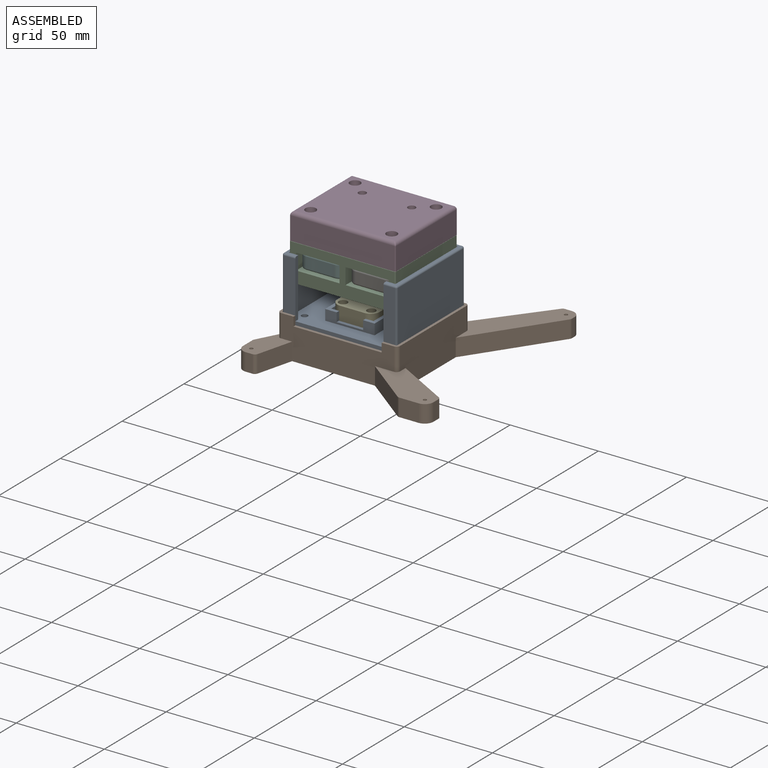
[diagram: assembled view]
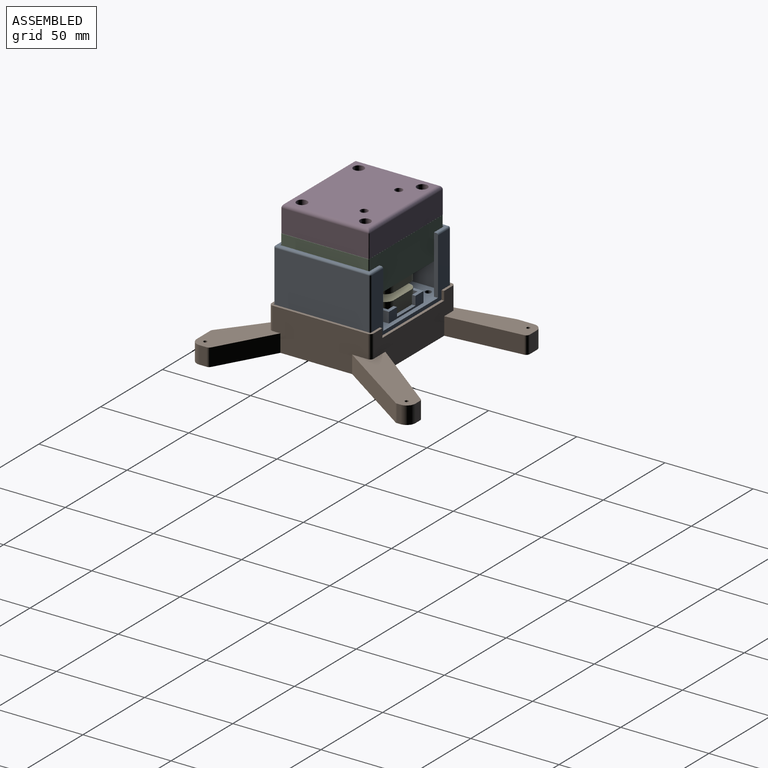
[diagram: assembled view, second angle]
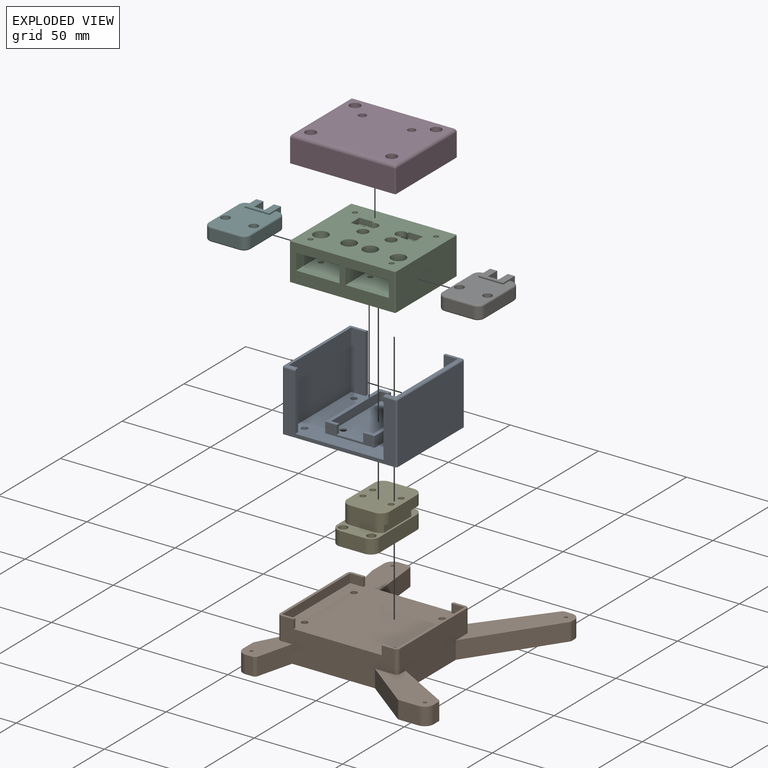
[diagram: exploded view]
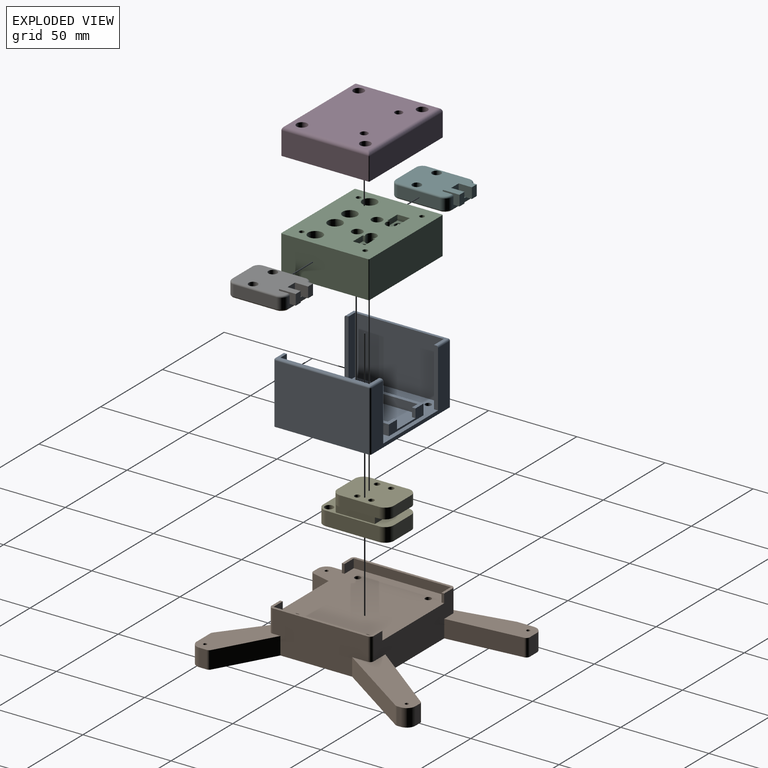
[diagram: exploded view, second angle]
FCSTD DOCUMENT  (FreeCAD 1.0R39319 (Git))
Label: BoltTaskAssembly_TypeA_V1
License: All rights reserved
LicenseURL: https://en.wikipedia.org/wiki/All_rights_reserved
objects: Sketcher::SketchObject×39, Part::FeaturePython×36, PartDesign::Mirrored×18, PartDesign::Hole×17, PartDesign::Fillet×13, PartDesign::Pad×11, PartDesign::Pocket×11, App::Link×7, PartDesign::Body×6, Assembly::JointGroup×1, Assembly::AssemblyObject×1
note: 312 computed .brp shape members not serialized (recipe doc carries the construction recipe); baked Part::Feature solids carry a one-line shape summary decoded from their .brp

FEATURE [Sketcher::SketchObject] Sketch
  ArcFitTolerance = 1e-06
  AttachmentSupport = -> [XY_Plane]
  FullyConstrained = true
  MakeInternals = false
  MapMode = 5
  sketch-geometry (4):
    g0: LineSegment StartX=-12 StartY=16 StartZ=0 EndX=-12 EndY=-16 EndZ=0
    g1: LineSegment StartX=-12 StartY=-16 StartZ=0 EndX=12 EndY=-16 EndZ=0
    g2: LineSegment StartX=12 StartY=-16 StartZ=0 EndX=12 EndY=16 EndZ=0
    g3: LineSegment StartX=12 StartY=16 StartZ=0 EndX=-12 EndY=16 EndZ=0
  constraints (12):
    c: Coincident(g0,g1)
    c: Coincident(g1,g2)
    c: Coincident(g2,g3)
    c: Coincident(g3,g0)
    c: Vertical(g0)
    c: Vertical(g2)
    c: Horizontal(g1)
    c: Horizontal(g3)
    c: Distance(g0,g2) = 24
    c: Distance(g1,g3) = 32
    c: Distance(g-1,g3) = 16
    c: Distance(g-1,g0) = 12
FEATURE [PartDesign::Pad] Pad
  Direction = (0,0,1)
  Length = 8
  Length2 = 10
  Midplane = true
  Profile = -> Sketch
  ReferenceAxis = -> Sketch [N_Axis]
  Refine = true
  Suppressed = false
  Type = 0
FEATURE [PartDesign::Fillet] Fillet
  Base = -> Pad [Edge2,Edge5,Edge8,Edge1]
  BaseFeature = -> Pad
  Radius = 4
  Refine = true
  SupportTransform = false
  Suppressed = false
  UseAllEdges = false
FEATURE [Sketcher::SketchObject] Sketch001
  ArcFitTolerance = 1e-06
  AttachmentSupport = -> [Fillet]
  FullyConstrained = true
  MakeInternals = false
  MapMode = 5
  Placement = pos=(0,0,4) rot=(0,0,1;0rad)
  sketch-geometry (1):
    g0: Circle CenterX=-8 CenterY=-4 CenterZ=0 NormalX=0 NormalY=0 NormalZ=1 AngleXU=0 Radius=2.5
  constraints (3):
    c: Diameter(g0) = 5
    c: DistanceY(g0,g-1) = 4
    c: DistanceX(g0,g-1) = 8
FEATURE [PartDesign::Hole] Hole
  BaseFeature = -> Fillet
  CustomThreadClearance = 0
  Depth = 25
  DepthType = 0
  Diameter = 5
  DrillForDepth = false
  DrillPoint = 1
  DrillPointAngle = 118
  HoleCutCountersinkAngle = 90
  HoleCutCustomValues = false
  HoleCutDepth = 0
  HoleCutDiameter = 6.1
  HoleCutType = 0
  ModelThread = false
  Profile = -> Sketch001
  Refine = true
  Suppressed = false
  Tapered = false
  TaperedAngle = 90
  ThreadClass = 0
  ThreadDepth = 25
  ThreadDepthType = 0
  ThreadDirection = 0
  ThreadFit = 0
  ThreadSize = 0
  ThreadType = 0
  Threaded = false
  UseCustomThreadClearance = false
FEATURE [PartDesign::Mirrored] Mirrored
  BaseFeature = -> Hole
  MirrorPlane = -> Sketch001 [V_Axis]
  Originals = -> [Hole]
  Refine = true
  Suppressed = false
  TransformMode = 0
FEATURE [Sketcher::SketchObject] Sketch002
  ArcFitTolerance = 1e-06
  AttachmentSupport = -> [Mirrored]
  FullyConstrained = true
  MakeInternals = false
  MapMode = 5
  Placement = pos=(0,0,4) rot=(0,0,1;0rad)
  sketch-geometry (4):
    g0: LineSegment StartX=-7 StartY=10 StartZ=0 EndX=7 EndY=10 EndZ=0
    g1: LineSegment StartX=7 StartY=10 StartZ=0 EndX=7 EndY=16 EndZ=0
    g2: LineSegment StartX=7 StartY=16 StartZ=0 EndX=-7 EndY=16 EndZ=0
    g3: LineSegment StartX=-7 StartY=16 StartZ=0 EndX=-7 EndY=10 EndZ=0
  constraints (12):
    c: Coincident(g0,g1)
    c: Coincident(g1,g2)
    c: Coincident(g2,g3)
    c: Coincident(g3,g0)
    c: Horizontal(g0)
    c: Horizontal(g2)
    c: Vertical(g1)
    c: Vertical(g3)
    c: Distance(g1,g3) = 14
    c: Distance(g0,g2) = 6
    c: Distance(g-2,g3) = 7
    c: Distance(g-1,g2) = 16
FEATURE [PartDesign::Pocket] Pocket
  BaseFeature = -> Mirrored
  Direction = (0,0,-1)
  Length = 5.2
  Length2 = 5
  Profile = -> Sketch002
  ReferenceAxis = -> Sketch002 [N_Axis]
  Refine = true
  Suppressed = false
  Type = 0
FEATURE [Sketcher::SketchObject] Sketch003
  ArcFitTolerance = 1e-06
  AttachmentSupport = -> [Pocket]
  FullyConstrained = true
  MakeInternals = false
  MapMode = 5
  Placement = pos=(0,0,-1.2) rot=(0,0,1;0rad)
  sketch-geometry (8):
    g0: LineSegment StartX=7 StartY=10 StartZ=0 EndX=-7 EndY=10 EndZ=0
    g1: LineSegment StartX=-7 StartY=10 StartZ=0 EndX=-7 EndY=19.5 EndZ=0
    g2: LineSegment StartX=-7 StartY=19.5 StartZ=0 EndX=-3 EndY=19.5 EndZ=0
    g3: LineSegment StartX=-3 StartY=19.5 StartZ=0 EndX=-3 EndY=12 EndZ=0
    g4: LineSegment StartX=-3 StartY=12 StartZ=0 EndX=3 EndY=12 EndZ=0
    g5: LineSegment StartX=3 StartY=12 StartZ=0 EndX=3 EndY=19.5 EndZ=0
    g6: LineSegment StartX=3 StartY=19.5 StartZ=0 EndX=7 EndY=19.5 EndZ=0
    g7: LineSegment StartX=7 StartY=19.5 StartZ=0 EndX=7 EndY=10 EndZ=0
  constraints (24):
    c: Horizontal(g0)
    c: Coincident(g0,g1)
    c: Vertical(g1)
    c: Coincident(g1,g2)
    c: Horizontal(g2)
    c: Coincident(g2,g3)
    c: Vertical(g3)
    c: Coincident(g3,g4)
    c: Horizontal(g4)
    c: Coincident(g4,g5)
    c: Vertical(g5)
    c: Coincident(g5,g6)
    c: Horizontal(g6)
    c: Coincident(g6,g7)
    c: Coincident(g7,g0)
    c: Vertical(g7)
    c: Distance(g3,g1) = 4
    c: Distance(g7,g5) = 4
    c: Distance(g7,g1) = 14
    c: Distance(g-2,g1) = 7
    c: Distance(g0,g4) = 2
    c: Distance(g0,g6) = 9.5
    c: Distance(g-1,g0) = 10
    c: Distance(g0,g2) = 9.5
FEATURE [PartDesign::Pad] Pad001
  BaseFeature = -> Pocket
  Direction = (0,0,1)
  Length = 6
  Length2 = 10
  Profile = -> Sketch003
  ReferenceAxis = -> Sketch003 [N_Axis]
  Refine = true
  Suppressed = false
  Type = 0
FEATURE [Assembly::JointGroup] Joints
FEATURE [PartDesign::Fillet] Fillet001
  Base = -> Pad001 [Edge8,Edge10,Edge11,Edge9,Edge6,Edge1,Edge5,Edge7]
  BaseFeature = -> Pad001
  Radius = 1
  Refine = true
  SupportTransform = false
  Suppressed = false
  UseAllEdges = false
FEATURE [PartDesign::Fillet] Fillet002
  Base = -> Fillet001 [Edge20,Edge3,Edge6,Edge16,Edge17,Edge18,Edge19,Edge11,Edge15]
  BaseFeature = -> Fillet001
  Radius = 1
  Refine = true
  SupportTransform = false
  Suppressed = false
  UseAllEdges = false
FEATURE [PartDesign::Body] Body  label="UnitOP180"
  AllowCompound = false
  Group = -> [Sketch,Pad,Fillet,Sketch001,Hole,Mirrored,Sketch002,Pocket,Sketch003,Pad001,Fillet001,Fillet002]
  Origin = -> Origin
  Tip = -> Fillet002
FEATURE [Sketcher::SketchObject] Sketch004
  ArcFitTolerance = 1e-06
  AttachmentSupport = -> [XY_Plane002]
  FullyConstrained = true
  MakeInternals = false
  MapMode = 5
  sketch-geometry (4):
    g0: LineSegment StartX=-30 StartY=-25 StartZ=0 EndX=30 EndY=-25 EndZ=0
    g1: LineSegment StartX=30 StartY=-25 StartZ=0 EndX=30 EndY=25 EndZ=0
    g2: LineSegment StartX=30 StartY=25 StartZ=0 EndX=-30 EndY=25 EndZ=0
    g3: LineSegment StartX=-30 StartY=25 StartZ=0 EndX=-30 EndY=-25 EndZ=0
  constraints (12):
    c: Coincident(g0,g1)
    c: Coincident(g1,g2)
    c: Coincident(g2,g3)
    c: Coincident(g3,g0)
    c: Horizontal(g0)
    c: Horizontal(g2)
    c: Vertical(g1)
    c: Vertical(g3)
    c: Distance(g1,g3) = 60
    c: Distance(g0,g2) = 50
    c: Distance(g3,g-2) = 30
    c: Distance(g2,g-1) = 25
FEATURE [Sketcher::SketchObject] Sketch005
  ArcFitTolerance = 1e-06
  AttachmentSupport = -> [XY_Plane003]
  FullyConstrained = true
  MakeInternals = false
  MapMode = 5
  sketch-geometry (4):
    g0: LineSegment StartX=-12 StartY=20 StartZ=0 EndX=-12 EndY=-20 EndZ=0
    g1: LineSegment StartX=-12 StartY=-20 StartZ=0 EndX=12 EndY=-20 EndZ=0
    g2: LineSegment StartX=12 StartY=-20 StartZ=0 EndX=12 EndY=20 EndZ=0
    g3: LineSegment StartX=12 StartY=20 StartZ=0 EndX=-12 EndY=20 EndZ=0
  constraints (12):
    c: Coincident(g0,g1)
    c: Coincident(g1,g2)
    c: Coincident(g2,g3)
    c: Coincident(g3,g0)
    c: Vertical(g0)
    c: Vertical(g2)
    c: Horizontal(g1)
    c: Horizontal(g3)
    c: Distance(g0,g2) = 24
    c: Distance(g1,g3) = 40
    c: Distance(g0,g-2) = 12
    c: Distance(g1,g-1) = 20
FEATURE [PartDesign::Pad] Pad002
  Direction = (0,0,1)
  Length = 8
  Length2 = 10
  Profile = -> Sketch005
  ReferenceAxis = -> Sketch005 [N_Axis]
  Refine = true
  Suppressed = false
  Type = 0
FEATURE [PartDesign::Pad] Pad004
  Direction = (0,0,1)
  Length = 21
  Length2 = 10
  Profile = -> Sketch004
  ReferenceAxis = -> Sketch004 [N_Axis]
  Refine = true
  Suppressed = false
  Type = 0
FEATURE [Sketcher::SketchObject] Sketch007
  ArcFitTolerance = 1e-06
  AttachmentSupport = -> [Pad004]
  FullyConstrained = true
  MakeInternals = false
  MapMode = 5
  Placement = pos=(0,-25,0) rot=(1,0,0;1.5708rad)
  sketch-geometry (4):
    g0: LineSegment StartX=1.7 StartY=16 StartZ=0 EndX=1.7 EndY=6.8 EndZ=0
    g1: LineSegment StartX=1.7 StartY=6.8 StartZ=0 EndX=26.3 EndY=6.8 EndZ=0
    g2: LineSegment StartX=26.3 StartY=6.8 StartZ=0 EndX=26.3 EndY=16 EndZ=0
    g3: LineSegment StartX=26.3 StartY=16 StartZ=0 EndX=1.7 EndY=16 EndZ=0
  constraints (12):
    c: Coincident(g0,g1)
    c: Coincident(g1,g2)
    c: Coincident(g2,g3)
    c: Coincident(g3,g0)
    c: Vertical(g0)
    c: Vertical(g2)
    c: Horizontal(g1)
    c: Horizontal(g3)
    c: Distance(g0,g2) = 24.6
    c: Distance(g1,g3) = 9.2
    c: Distance(g-2,g0) = 1.7
    c: Distance(g-1,g1) = 6.8
FEATURE [PartDesign::Pocket] Pocket001
  BaseFeature = -> Pad004
  Direction = (0,1,-2e-16)
  Length = 40
  Length2 = 5
  Profile = -> Sketch007
  ReferenceAxis = -> Sketch007 [N_Axis]
  Refine = true
  Suppressed = false
  Type = 0
FEATURE [PartDesign::Mirrored] Mirrored001
  BaseFeature = -> Pocket001
  MirrorPlane = -> Sketch007 [V_Axis]
  Originals = -> [Pocket001]
  Refine = true
  Suppressed = false
  TransformMode = 0
FEATURE [Sketcher::SketchObject] Sketch008
  ArcFitTolerance = 1e-06
  AttachmentSupport = -> [Mirrored001]
  FullyConstrained = true
  MakeInternals = false
  MapMode = 5
  Placement = pos=(0,0,21) rot=(0,0,1;0rad)
  sketch-geometry (1):
    g0: Circle CenterX=14 CenterY=11 CenterZ=0 NormalX=0 NormalY=0 NormalZ=1 AngleXU=0 Radius=2.25
  constraints (3):
    c: Diameter(g0) = 4.5
    c: DistanceX(g-1,g0) = 14
    c: Distance(g0,g-1) = 11
FEATURE [PartDesign::Hole] Hole001
  BaseFeature = -> Mirrored001
  CustomThreadClearance = 0
  Depth = 162.858
  DepthType = 1
  Diameter = 4.5
  DrillForDepth = false
  DrillPoint = 1
  DrillPointAngle = 118
  HoleCutCountersinkAngle = 90
  HoleCutCustomValues = false
  HoleCutDepth = 0
  HoleCutDiameter = 6.1
  HoleCutType = 0
  ModelThread = false
  Profile = -> Sketch008
  Refine = true
  Suppressed = false
  Tapered = false
  TaperedAngle = 90
  ThreadClass = 0
  ThreadDepth = 162.858
  ThreadDepthType = 0
  ThreadDirection = 0
  ThreadFit = 0
  ThreadSize = 0
  ThreadType = 0
  Threaded = false
  UseCustomThreadClearance = false
FEATURE [PartDesign::Mirrored] Mirrored002
  BaseFeature = -> Hole001
  MirrorPlane = -> Sketch008 [V_Axis]
  Originals = -> [Hole001]
  Refine = true
  Suppressed = false
  TransformMode = 0
FEATURE [Sketcher::SketchObject] Sketch009
  ArcFitTolerance = 1e-06
  AttachmentSupport = -> [Mirrored002]
  ExternalGeometry = -> [Mirrored002]
  FullyConstrained = true
  MakeInternals = false
  MapMode = 5
  Placement = pos=(0,0,0) rot=(1,0,0;3.14159rad)
  sketch-geometry (4):
    g0: LineSegment StartX=-12 StartY=-23 StartZ=0 EndX=12 EndY=-23 EndZ=0
    g1: LineSegment StartX=12 StartY=-23 StartZ=0 EndX=12 EndY=9 EndZ=0
    g2: LineSegment StartX=12 StartY=9 StartZ=0 EndX=-12 EndY=9 EndZ=0
    g3: LineSegment StartX=-12 StartY=9 StartZ=0 EndX=-12 EndY=-23 EndZ=0
  constraints (12):
    c: Coincident(g0,g1)
    c: Coincident(g1,g2)
    c: Coincident(g2,g3)
    c: Coincident(g3,g0)
    c: Horizontal(g0)
    c: Horizontal(g2)
    c: Vertical(g1)
    c: Vertical(g3)
    c: Distance(g1,g3) = 24
    c: Distance(g0,g2) = 32
    c: Distance(g3,g-2) = 12
    c: Distance(g2,g-3) = 34
FEATURE [PartDesign::Pocket] Pocket002
  BaseFeature = -> Mirrored002
  Direction = (0,0,1)
  Length = 2
  Length2 = 5
  Profile = -> Sketch009
  ReferenceAxis = -> Sketch009 [N_Axis]
  Refine = true
  Suppressed = false
  Type = 0
FEATURE [Sketcher::SketchObject] Sketch010
  ArcFitTolerance = 1e-06
  AttachmentSupport = -> [Pocket002]
  ExternalGeometry = -> [Pocket002]
  FullyConstrained = true
  MakeInternals = false
  MapMode = 5
  Placement = pos=(0,0,21) rot=(0,0,1;0rad)
  sketch-geometry (4):
    g0: LineSegment StartX=9.95 StartY=14.5 StartZ=0 EndX=9.95 EndY=7.5 EndZ=0
    g1: LineSegment StartX=9.95 StartY=7.5 StartZ=0 EndX=18.05 EndY=7.5 EndZ=0
    g2: LineSegment StartX=18.05 StartY=7.5 StartZ=0 EndX=18.05 EndY=14.5 EndZ=0
    g3: LineSegment StartX=18.05 StartY=14.5 StartZ=0 EndX=9.95 EndY=14.5 EndZ=0
  constraints (12):
    c: Coincident(g0,g1)
    c: Coincident(g1,g2)
    c: Coincident(g2,g3)
    c: Coincident(g3,g0)
    c: Vertical(g0)
    c: Vertical(g2)
    c: Horizontal(g1)
    c: Horizontal(g3)
    c: Distance(g0,g2) = 8.1
    c: Distance(g1,g3) = 7
    c: Distance(g-3,g3) = 3.5
    c: Distance(g-3,g2) = 4.05
FEATURE [PartDesign::Pocket] Pocket003
  BaseFeature = -> Pocket002
  Direction = (0,0,-1)
  Length = 3.05
  Length2 = 5
  Profile = -> Sketch010
  ReferenceAxis = -> Sketch010 [N_Axis]
  Refine = true
  Suppressed = false
  Type = 0
FEATURE [PartDesign::Mirrored] Mirrored003
  BaseFeature = -> Pocket003
  MirrorPlane = -> Sketch010 [V_Axis]
  Originals = -> [Pocket003]
  Refine = true
  Suppressed = false
  TransformMode = 0
FEATURE [Sketcher::SketchObject] Sketch011
  ArcFitTolerance = 1e-06
  AttachmentSupport = -> [Mirrored003]
  FullyConstrained = true
  MakeInternals = false
  MapMode = 5
  Placement = pos=(0,0,21) rot=(0,0,1;0rad)
  sketch-geometry (2):
    g0: Circle CenterX=6 CenterY=-11 CenterZ=0 NormalX=0 NormalY=0 NormalZ=1 AngleXU=0 Radius=4
    g1: Circle CenterX=22 CenterY=-11 CenterZ=0 NormalX=0 NormalY=0 NormalZ=1 AngleXU=0 Radius=4
  constraints (6):
    c: Diameter(g0) = 8
    c: Distance(g0,g-1) = 11
    c: Distance(g0,g-2) = 6
    c: Diameter(g1) = 8
    c: Distance(g1,g-1) = 11
    c: DistanceX(g0,g1) = 16
FEATURE [PartDesign::Hole] Hole002
  BaseFeature = -> Mirrored003
  CustomThreadClearance = 0
  Depth = 25
  DepthType = 0
  Diameter = 2.8
  DrillForDepth = false
  DrillPoint = 1
  DrillPointAngle = 118
  HoleCutCountersinkAngle = 90
  HoleCutCustomValues = false
  HoleCutDepth = 5.42
  HoleCutDiameter = 8.2
  HoleCutType = 1
  ModelThread = false
  Profile = -> Sketch011
  Refine = true
  Suppressed = false
  Tapered = false
  TaperedAngle = 90
  ThreadClass = 0
  ThreadDepth = 25
  ThreadDepthType = 0
  ThreadDirection = 0
  ThreadFit = 0
  ThreadSize = 0
  ThreadType = 0
  Threaded = false
  UseCustomThreadClearance = false
FEATURE [PartDesign::Mirrored] Mirrored004
  BaseFeature = -> Hole002
  MirrorPlane = -> Sketch011 [V_Axis]
  Originals = -> [Hole002]
  Refine = true
  Suppressed = false
  TransformMode = 0
FEATURE [Sketcher::SketchObject] Sketch012
  ArcFitTolerance = 1e-06
  AttachmentSupport = -> [Mirrored004]
  ExternalGeometry = -> [Mirrored004]
  FullyConstrained = true
  MakeInternals = false
  MapMode = 5
  Placement = pos=(0,0,2) rot=(1,0,0;3.14159rad)
  sketch-geometry (2):
    g0: Circle CenterX=8 CenterY=-11 CenterZ=0 NormalX=0 NormalY=0 NormalZ=1 AngleXU=0 Radius=1.6
    g1: Circle CenterX=8 CenterY=-3 CenterZ=0 NormalX=0 NormalY=0 NormalZ=1 AngleXU=0 Radius=1.6
  constraints (7):
    c: Diameter(g0) = 3.2
    c: Diameter(g1) = 3.2
    c: Distance(g1,g-2) = 8
    c: Distance(g0,g-2) = 8
    c: Distance(g0,g-3) = 12
    c: DistanceX(g-3,g-3) = 24
    c: Distance(g1,g-3) = 20
FEATURE [PartDesign::Hole] Hole003
  BaseFeature = -> Mirrored004
  CustomThreadClearance = 0
  Depth = 25
  DepthType = 0
  Diameter = 3.2
  DrillForDepth = false
  DrillPoint = 1
  DrillPointAngle = 118
  HoleCutCountersinkAngle = 90
  HoleCutCustomValues = false
  HoleCutDepth = 0
  HoleCutDiameter = 6.1
  HoleCutType = 0
  ModelThread = false
  Profile = -> Sketch012
  Refine = true
  Suppressed = false
  Tapered = false
  TaperedAngle = 90
  ThreadClass = 0
  ThreadDepth = 25
  ThreadDepthType = 0
  ThreadDirection = 0
  ThreadFit = 0
  ThreadSize = 0
  ThreadType = 0
  Threaded = false
  UseCustomThreadClearance = false
FEATURE [Sketcher::SketchObject] Sketch013
  ArcFitTolerance = 1e-06
  AttachmentSupport = -> [Hole003]
  ExternalGeometry = -> [Hole003]
  FullyConstrained = true
  MakeInternals = false
  MapMode = 5
  Placement = pos=(0,0,21) rot=(0,0,1;0rad)
  sketch-geometry (2):
    g0: Circle CenterX=8 CenterY=11 CenterZ=0 NormalX=0 NormalY=0 NormalZ=1 AngleXU=0 Radius=3
    g1: Circle CenterX=8 CenterY=3 CenterZ=0 NormalX=0 NormalY=0 NormalZ=1 AngleXU=0 Radius=3
  constraints (4):
    c: Diameter(g0) = 6
    c: Coincident(g0,g-3)
    c: Diameter(g1) = 6
    c: Coincident(g1,g-4)
FEATURE [PartDesign::Hole] Hole004
  BaseFeature = -> Hole003
  CustomThreadClearance = 0
  Depth = 17
  DepthType = 0
  Diameter = 6
  DrillForDepth = false
  DrillPoint = 1
  DrillPointAngle = 118
  HoleCutCountersinkAngle = 90
  HoleCutCustomValues = false
  HoleCutDepth = 0
  HoleCutDiameter = 6.1
  HoleCutType = 0
  ModelThread = false
  Profile = -> Sketch013
  Refine = true
  Suppressed = false
  Tapered = false
  TaperedAngle = 90
  ThreadClass = 0
  ThreadDepth = 17
  ThreadDepthType = 0
  ThreadDirection = 0
  ThreadFit = 0
  ThreadSize = 0
  ThreadType = 0
  Threaded = false
  UseCustomThreadClearance = false
FEATURE [PartDesign::Mirrored] Mirrored005
  BaseFeature = -> Hole004
  MirrorPlane = -> Sketch013 [V_Axis]
  Originals = -> [Hole004]
  Refine = true
  Suppressed = false
  TransformMode = 0
FEATURE [PartDesign::Mirrored] Mirrored006
  BaseFeature = -> Mirrored005
  MirrorPlane = -> Sketch012 [V_Axis]
  Originals = -> [Hole003]
  Refine = true
  Suppressed = false
  TransformMode = 0
FEATURE [Sketcher::SketchObject] Sketch014
  ArcFitTolerance = 1e-06
  AttachmentSupport = -> [Mirrored006]
  ExternalGeometry = -> [Mirrored006]
  FullyConstrained = true
  MakeInternals = false
  MapMode = 5
  Placement = pos=(0,0,21) rot=(0,0,1;0rad)
  sketch-geometry (2):
    g0: Circle CenterX=23 CenterY=18 CenterZ=0 NormalX=0 NormalY=0 NormalZ=1 AngleXU=0 Radius=1.6
    g1: Circle CenterX=23 CenterY=-18 CenterZ=0 NormalX=0 NormalY=0 NormalZ=1 AngleXU=0 Radius=1.6
  constraints (6):
    c: Diameter(g0) = 3.2
    c: Distance(g0,g-3) = 7
    c: Distance(g0,g-4) = 7
    c: Diameter(g1) = 3.2
    c: Distance(g1,g-5) = 7
    c: Distance(g1,g-4) = 7
FEATURE [PartDesign::Hole] Hole005
  BaseFeature = -> Mirrored006
  CustomThreadClearance = 0
  Depth = 7
  DepthType = 0
  Diameter = 2.8
  DrillForDepth = false
  DrillPoint = 1
  DrillPointAngle = 118
  HoleCutCountersinkAngle = 90
  HoleCutCustomValues = false
  HoleCutDepth = 0
  HoleCutDiameter = 6.1
  HoleCutType = 0
  ModelThread = false
  Profile = -> Sketch014
  Refine = true
  Suppressed = false
  Tapered = false
  TaperedAngle = 90
  ThreadClass = 0
  ThreadDepth = 7
  ThreadDepthType = 0
  ThreadDirection = 0
  ThreadFit = 0
  ThreadSize = 0
  ThreadType = 0
  Threaded = false
  UseCustomThreadClearance = false
FEATURE [PartDesign::Mirrored] Mirrored007
  BaseFeature = -> Hole005
  MirrorPlane = -> Sketch014 [V_Axis]
  Originals = -> [Hole005]
  Refine = true
  Suppressed = false
  TransformMode = 0
FEATURE [PartDesign::Mirrored] Mirrored008
  BaseFeature = -> Mirrored007
  MirrorPlane = -> Sketch014 [V_Axis]
  Originals = -> [Hole005]
  Refine = true
  Suppressed = false
  TransformMode = 0
FEATURE [PartDesign::Fillet] Fillet007
  Base = -> Mirrored008 [Edge1,Edge4,Edge56,Edge13]
  BaseFeature = -> Mirrored008
  Radius = 0.5
  Refine = true
  SupportTransform = false
  Suppressed = false
  UseAllEdges = false
FEATURE [PartDesign::Body] Body001  label="Main"
  AllowCompound = false
  Group = -> [Sketch004,Pad004,Sketch007,Pocket001,Mirrored001,Sketch008,Hole001,Mirrored002,Sketch009,Pocket002,Sketch010,Pocket003,Mirrored003,Sketch011,Hole002,Mirrored004,Sketch012,Hole003,Sketch013,Hole004,Mirrored005,Mirrored006,Sketch014,Hole005,Mirrored007,Mirrored008,Fillet007]
  Origin = -> Origin002
  Tip = -> Fillet007
FEATURE [Sketcher::SketchObject] Sketch015
  ArcFitTolerance = 1e-06
  AttachmentSupport = -> [XY_Plane004]
  FullyConstrained = true
  MakeInternals = false
  MapMode = 5
  sketch-geometry (4):
    g0: LineSegment StartX=-30 StartY=25 StartZ=0 EndX=-30 EndY=-25 EndZ=0
    g1: LineSegment StartX=-30 StartY=-25 StartZ=0 EndX=30 EndY=-25 EndZ=0
    g2: LineSegment StartX=30 StartY=-25 StartZ=0 EndX=30 EndY=25 EndZ=0
    g3: LineSegment StartX=30 StartY=25 StartZ=0 EndX=-30 EndY=25 EndZ=0
  constraints (12):
    c: Coincident(g0,g1)
    c: Coincident(g1,g2)
    c: Coincident(g2,g3)
    c: Coincident(g3,g0)
    c: Vertical(g0)
    c: Vertical(g2)
    c: Horizontal(g1)
    c: Horizontal(g3)
    c: Distance(g0,g2) = 60
    c: Distance(g1,g3) = 50
    c: Distance(g-2,g0) = 30
    c: Distance(g3,g-1) = 25
FEATURE [PartDesign::Pad] Pad005
  Direction = (0,0,1)
  Length = 15
  Length2 = 10
  Profile = -> Sketch015
  ReferenceAxis = -> Sketch015 [N_Axis]
  Refine = true
  Suppressed = false
  Type = 0
FEATURE [Sketcher::SketchObject] Sketch016
  ArcFitTolerance = 1e-06
  AttachmentSupport = -> [Pad005]
  ExternalGeometry = -> [Pad005]
  FullyConstrained = true
  MakeInternals = false
  MapMode = 5
  Placement = pos=(0,0,15) rot=(0,0,1;0rad)
  sketch-geometry (2):
    g0: Circle CenterX=23 CenterY=18 CenterZ=0 NormalX=0 NormalY=0 NormalZ=1 AngleXU=0 Radius=4
    g1: Circle CenterX=23 CenterY=-18 CenterZ=0 NormalX=0 NormalY=0 NormalZ=1 AngleXU=0 Radius=4
  constraints (6):
    c: Diameter(g0) = 8
    c: Distance(g0,g-4) = 7
    c: Distance(g0,g-3) = 7
    c: Diameter(g1) = 8
    c: Distance(g1,g-4) = 7
    c: Distance(g1,g-5) = 7
FEATURE [PartDesign::Hole] Hole006
  BaseFeature = -> Pad005
  CustomThreadClearance = 0
  Depth = 25
  DepthType = 0
  Diameter = 2.8
  DrillForDepth = false
  DrillPoint = 1
  DrillPointAngle = 118
  HoleCutCountersinkAngle = 90
  HoleCutCustomValues = false
  HoleCutDepth = 10
  HoleCutDiameter = 6
  HoleCutType = 1
  ModelThread = false
  Profile = -> Sketch016
  Refine = true
  Suppressed = false
  Tapered = false
  TaperedAngle = 90
  ThreadClass = 0
  ThreadDepth = 25
  ThreadDepthType = 0
  ThreadDirection = 0
  ThreadFit = 0
  ThreadSize = 0
  ThreadType = 0
  Threaded = false
  UseCustomThreadClearance = false
FEATURE [PartDesign::Mirrored] Mirrored009
  BaseFeature = -> Hole006
  MirrorPlane = -> Sketch016 [V_Axis]
  Originals = -> [Hole006]
  Refine = true
  Suppressed = false
  TransformMode = 0
FEATURE [Sketcher::SketchObject] Sketch018
  ArcFitTolerance = 1e-06
  FullyConstrained = true
  MakeInternals = false
  MapMode = 5
  Placement = pos=(0,0,15) rot=(0,0,1;0rad)
  sketch-geometry (1):
    g0: Circle CenterX=14 CenterY=11 CenterZ=0 NormalX=0 NormalY=0 NormalZ=1 AngleXU=0 Radius=2.15
  constraints (3):
    c: Diameter(g0) = 4.3
    c: Distance(g0,g-2) = 14
    c: Distance(g0,g-1) = 11
FEATURE [PartDesign::Hole] Hole007
  BaseFeature = -> Mirrored009
  CustomThreadClearance = 0
  Depth = 25
  DepthType = 0
  Diameter = 4.3
  DrillForDepth = false
  DrillPoint = 1
  DrillPointAngle = 118
  HoleCutCountersinkAngle = 90
  HoleCutCustomValues = false
  HoleCutDepth = 0
  HoleCutDiameter = 6.1
  HoleCutType = 0
  ModelThread = false
  Profile = -> Sketch018
  Refine = true
  Suppressed = false
  Tapered = false
  TaperedAngle = 90
  ThreadClass = 0
  ThreadDepth = 25
  ThreadDepthType = 0
  ThreadDirection = 0
  ThreadFit = 0
  ThreadSize = 0
  ThreadType = 0
  Threaded = false
  UseCustomThreadClearance = false
FEATURE [PartDesign::Mirrored] Mirrored011
  BaseFeature = -> Hole007
  MirrorPlane = -> Sketch018 [V_Axis]
  Originals = -> [Hole007]
  Refine = true
  Suppressed = false
  TransformMode = 0
FEATURE [PartDesign::Fillet] Fillet008
  Base = -> Mirrored011 [Edge2,Edge8,Edge5,Edge1]
  BaseFeature = -> Mirrored011
  Radius = 0.5
  Refine = true
  SupportTransform = false
  Suppressed = false
  UseAllEdges = false
FEATURE [PartDesign::Fillet] Fillet009
  Base = -> Fillet008 [Edge22,Edge4,Edge26,Edge23]
  BaseFeature = -> Fillet008
  Radius = 2
  Refine = true
  SupportTransform = false
  Suppressed = false
  UseAllEdges = false
FEATURE [PartDesign::Body] Body003  label="Top"
  AllowCompound = false
  Group = -> [Sketch015,Pad005,Sketch016,Hole006,Mirrored009,Sketch018,Hole007,Mirrored011,Fillet008,Fillet009]
  Origin = -> Origin004
  Tip = -> Fillet009
FEATURE [App::Link] Main  label="Main001"
  LinkPlacement = pos=(-53.2103,-49.0185,8.18569) rot=(0,0,1;0rad)
  LinkedObject = -> Body001
  Placement = pos=(-53.2103,-49.0185,8.18569) rot=(0,0,1;0rad)
FEATURE [App::Link] Top  label="Top001"
  LinkPlacement = pos=(-53.2165,-48.9245,29.2925) rot=(0,0,1;0rad)
  LinkedObject = -> Body003
  Placement = pos=(-53.2165,-48.9245,29.2925) rot=(0,0,1;0rad)
FEATURE [App::Link] UnitOP180  label="UnitOP181"
  LinkPlacement = pos=(-67.2322,-55.9739,19.3972) rot=(0,0,1;0rad)
  LinkedObject = -> Body
  Placement = pos=(-67.2322,-55.9739,19.3972) rot=(0,0,1;0rad)
FEATURE [App::Link] UnitOP181  label="UnitOP182"
  LinkPlacement = pos=(-39.2448,-55.9824,19.1881) rot=(0,0,1;0rad)
  LinkedObject = -> Body
  Placement = pos=(-39.2448,-55.9824,19.1881) rot=(0,0,1;0rad)
FEATURE [App::Link] UnitMiniScale  label="UnitMiniScale001"
  LinkPlacement = pos=(-53.235,-46.002,-8.96991) rot=(0,0,1;3.14159rad)
  LinkedObject = -> Body002
  Placement = pos=(-53.235,-46.002,-8.96991) rot=(0,0,1;3.14159rad)
FEATURE [Sketcher::SketchObject] Sketch019
  ArcFitTolerance = 1e-06
  AttachmentSupport = -> [XY_Plane005]
  FullyConstrained = true
  MakeInternals = false
  MapMode = 5
  sketch-geometry (4):
    g0: LineSegment StartX=-32.5 StartY=27.5 StartZ=0 EndX=-32.5 EndY=-27.5 EndZ=0
    g1: LineSegment StartX=-32.5 StartY=-27.5 StartZ=0 EndX=32.5 EndY=-27.5 EndZ=0
    g2: LineSegment StartX=32.5 StartY=-27.5 StartZ=0 EndX=32.5 EndY=27.5 EndZ=0
    g3: LineSegment StartX=32.5 StartY=27.5 StartZ=0 EndX=-32.5 EndY=27.5 EndZ=0
  constraints (12):
    c: Coincident(g0,g1)
    c: Coincident(g1,g2)
    c: Coincident(g2,g3)
    c: Coincident(g3,g0)
    c: Vertical(g0)
    c: Vertical(g2)
    c: Horizontal(g1)
    c: Horizontal(g3)
    c: Distance(g0,g2) = 65
    c: Distance(g1,g3) = 55
    c: Distance(g2,g-2) = 32.5
    c: Distance(g3,g-1) = 27.5
FEATURE [PartDesign::Pad] Pad006
  Direction = (0,0,1)
  Length = 35
  Length2 = 10
  Profile = -> Sketch019
  ReferenceAxis = -> Sketch019 [N_Axis]
  Refine = true
  Suppressed = false
  Type = 0
FEATURE [Sketcher::SketchObject] Sketch020
  ArcFitTolerance = 1e-06
  AttachmentSupport = -> [Pad006]
  FullyConstrained = true
  MakeInternals = false
  MapMode = 5
  Placement = pos=(0,0,35) rot=(0,0,1;0rad)
  sketch-geometry (8):
    g0: LineSegment StartX=22.2 StartY=-35.2 StartZ=0 EndX=22.2 EndY=-25.2 EndZ=0
    g1: LineSegment StartX=22.2 StartY=-25.2 StartZ=0 EndX=30.2 EndY=-25.2 EndZ=0
    g2: LineSegment StartX=30.2 StartY=-25.2 StartZ=0 EndX=30.2 EndY=25.2 EndZ=0
    g3: LineSegment StartX=30.2 StartY=25.2 StartZ=0 EndX=-30.2 EndY=25.2 EndZ=0
    g4: LineSegment StartX=-30.2 StartY=25.2 StartZ=0 EndX=-30.2 EndY=-25.2 EndZ=0
    g5: LineSegment StartX=-30.2 StartY=-25.2 StartZ=0 EndX=-22.2 EndY=-25.2 EndZ=0
    g6: LineSegment StartX=-22.2 StartY=-25.2 StartZ=0 EndX=-22.2 EndY=-35.2 EndZ=0
    g7: LineSegment StartX=-22.2 StartY=-35.2 StartZ=0 EndX=22.2 EndY=-35.2 EndZ=0
  constraints (24):
    c: Coincident(g0,g1)
    c: Horizontal(g1)
    c: Coincident(g1,g2)
    c: Vertical(g2)
    c: Coincident(g2,g3)
    c: Horizontal(g3)
    c: Coincident(g3,g4)
    c: Vertical(g4)
    c: Coincident(g4,g5)
    c: Horizontal(g5)
    c: Coincident(g5,g6)
    c: Vertical(g6)
    c: Coincident(g6,g7)
    c: Coincident(g7,g0)
    c: Horizontal(g7)
    c: Distance(g2,g4) = 60.4
    c: Distance(g5,g4) = 8
    c: Distance(g0,g2) = 8
    c: Parallel(g0,g-2)
    c: Distance(g5,g3) = 50.4
    c: Distance(g-2,g4) = 30.2
    c: Distance(g-1,g3) = 25.2
    c: Distance(g1,g3) = 50.4
    c: Distance(g1,g7) = 10
FEATURE [PartDesign::Pocket] Pocket005
  BaseFeature = -> Pad006
  Direction = (0,0,-1)
  Length = 33
  Length2 = 5
  Profile = -> Sketch020
  ReferenceAxis = -> Sketch020 [N_Axis]
  Refine = true
  Suppressed = false
  Type = 0
FEATURE [Sketcher::SketchObject] Sketch021
  ArcFitTolerance = 1e-06
  AttachmentSupport = -> [Pocket005]
  ExternalGeometry = -> [Pocket005]
  FullyConstrained = true
  MakeInternals = false
  MapMode = 5
  Placement = pos=(0,0,2) rot=(0,0,1;0rad)
  sketch-geometry (4):
    g0: LineSegment StartX=-14 StartY=19 StartZ=0 EndX=-14 EndY=-25 EndZ=0
    g1: LineSegment StartX=-14 StartY=-25 StartZ=0 EndX=14 EndY=-25 EndZ=0
    g2: LineSegment StartX=14 StartY=-25 StartZ=0 EndX=14 EndY=19 EndZ=0
    g3: LineSegment StartX=14 StartY=19 StartZ=0 EndX=-14 EndY=19 EndZ=0
  constraints (12):
    c: Coincident(g0,g1)
    c: Coincident(g1,g2)
    c: Coincident(g2,g3)
    c: Coincident(g3,g0)
    c: Vertical(g0)
    c: Vertical(g2)
    c: Horizontal(g1)
    c: Horizontal(g3)
    c: Distance(g0,g2) = 28
    c: Distance(g1,g3) = 44
    c: Distance(g-3,g1) = 0.2
    c: Distance(g-2,g0) = 14
FEATURE [PartDesign::Pad] Pad007
  BaseFeature = -> Pocket005
  Direction = (0,0,1)
  Length = 6
  Length2 = 10
  Profile = -> Sketch021
  ReferenceAxis = -> Sketch021 [N_Axis]
  Refine = true
  Suppressed = false
  Type = 0
FEATURE [Sketcher::SketchObject] Sketch022
  ArcFitTolerance = 1e-06
  AttachmentSupport = -> [Pad007]
  ExternalGeometry = -> [Pad007]
  FullyConstrained = true
  MakeInternals = false
  MapMode = 5
  Placement = pos=(0,0,8) rot=(0,0,1;0rad)
  sketch-geometry (4):
    g0: LineSegment StartX=-12 StartY=17 StartZ=0 EndX=-12 EndY=-23 EndZ=0
    g1: LineSegment StartX=-12 StartY=-23 StartZ=0 EndX=12 EndY=-23 EndZ=0
    g2: LineSegment StartX=12 StartY=-23 StartZ=0 EndX=12 EndY=17 EndZ=0
    g3: LineSegment StartX=12 StartY=17 StartZ=0 EndX=-12 EndY=17 EndZ=0
  constraints (12):
    c: Coincident(g0,g1)
    c: Coincident(g1,g2)
    c: Coincident(g2,g3)
    c: Coincident(g3,g0)
    c: Vertical(g0)
    c: Vertical(g2)
    c: Horizontal(g1)
    c: Horizontal(g3)
    c: Distance(g0,g2) = 24
    c: Distance(g1,g3) = 40
    c: Distance(g-2,g0) = 12
    c: Distance(g3,g-3) = 2
FEATURE [PartDesign::Pocket] Pocket006
  BaseFeature = -> Pad007
  Direction = (0,0,-1)
  Length = 5
  Length2 = 5
  Profile = -> Sketch022
  ReferenceAxis = -> Sketch022 [N_Axis]
  Refine = true
  Suppressed = false
  Type = 0
FEATURE [Sketcher::SketchObject] Sketch023
  ArcFitTolerance = 1e-06
  AttachmentSupport = -> [Pocket006]
  ExternalGeometry = -> [Pocket006]
  FullyConstrained = true
  MakeInternals = false
  MapMode = 5
  Placement = pos=(0,0,3) rot=(0,0,1;0rad)
  sketch-geometry (1):
    g0: Circle CenterX=-8 CenterY=13 CenterZ=0 NormalX=0 NormalY=0 NormalZ=1 AngleXU=0 Radius=2
  constraints (3):
    c: Diameter(g0) = 4
    c: Distance(g0,g-3) = 4
    c: Distance(g0,g-4) = 4
FEATURE [PartDesign::Hole] Hole008
  BaseFeature = -> Pocket006
  CustomThreadClearance = 0
  Depth = 25
  DepthType = 0
  Diameter = 3.5
  DrillForDepth = false
  DrillPoint = 1
  DrillPointAngle = 118
  HoleCutCountersinkAngle = 90
  HoleCutCustomValues = false
  HoleCutDepth = 0
  HoleCutDiameter = 6.1
  HoleCutType = 0
  ModelThread = false
  Profile = -> Sketch023
  Refine = true
  Suppressed = false
  Tapered = false
  TaperedAngle = 90
  ThreadClass = 0
  ThreadDepth = 25
  ThreadDepthType = 0
  ThreadDirection = 0
  ThreadFit = 0
  ThreadSize = 0
  ThreadType = 0
  Threaded = false
  UseCustomThreadClearance = false
FEATURE [PartDesign::Mirrored] Mirrored012
  BaseFeature = -> Hole008
  MirrorPlane = -> Sketch023 [V_Axis]
  Originals = -> [Hole008]
  Refine = true
  Suppressed = false
  TransformMode = 0
FEATURE [Sketcher::SketchObject] Sketch024
  ArcFitTolerance = 1e-06
  AttachmentSupport = -> [Mirrored012]
  ExternalGeometry = -> [Mirrored012]
  FullyConstrained = true
  MakeInternals = false
  MapMode = 5
  Placement = pos=(0,0,0) rot=(1,0,0;3.14159rad)
  sketch-geometry (1):
    g0: Circle CenterX=-8 CenterY=-13 CenterZ=0 NormalX=0 NormalY=0 NormalZ=1 AngleXU=0 Radius=4
  constraints (2):
    c: Diameter(g0) = 8
    c: Coincident(g0,g-3)
FEATURE [PartDesign::Hole] Hole009
  BaseFeature = -> Mirrored012
  CustomThreadClearance = 0
  Depth = 25
  DepthType = 0
  Diameter = 3.5
  DrillForDepth = false
  DrillPoint = 1
  DrillPointAngle = 118
  HoleCutCountersinkAngle = 90
  HoleCutCustomValues = false
  HoleCutDepth = 2
  HoleCutDiameter = 8
  HoleCutType = 2
  ModelThread = false
  Profile = -> Sketch024
  Refine = true
  Suppressed = false
  Tapered = false
  TaperedAngle = 90
  ThreadClass = 0
  ThreadDepth = 25
  ThreadDepthType = 0
  ThreadDirection = 0
  ThreadFit = 0
  ThreadSize = 0
  ThreadType = 0
  Threaded = false
  UseCustomThreadClearance = false
FEATURE [PartDesign::Mirrored] Mirrored013
  BaseFeature = -> Hole009
  MirrorPlane = -> Sketch024 [V_Axis]
  Originals = -> [Hole009]
  Refine = true
  Suppressed = false
  TransformMode = 0
FEATURE [PartDesign::Fillet] Fillet010
  Base = -> Mirrored013 [Edge2,Edge9,Edge5,Edge1]
  BaseFeature = -> Mirrored013
  Radius = 1
  Refine = true
  SupportTransform = false
  Suppressed = false
  UseAllEdges = false
FEATURE [PartDesign::Fillet] Fillet011
  Base = -> Fillet010 [Edge18,Edge19,Edge20,Edge21,Edge22,Edge4,Edge15,Edge17,Edge23]
  BaseFeature = -> Fillet010
  Radius = 1
  Refine = true
  SupportTransform = false
  Suppressed = false
  UseAllEdges = false
FEATURE [Sketcher::SketchObject] Sketch025
  ArcFitTolerance = 1e-06
  AttachmentSupport = -> [Fillet011]
  ExternalGeometry = -> [Fillet011]
  FullyConstrained = true
  MakeInternals = false
  MapMode = 5
  Placement = pos=(0,0,8) rot=(0,0,1;0rad)
  sketch-geometry (8):
    g0: LineSegment StartX=-7.5 StartY=-23 StartZ=0 EndX=-7.5 EndY=-25 EndZ=0
    g1: LineSegment StartX=-7.5 StartY=-25 StartZ=0 EndX=7.5 EndY=-25 EndZ=0
    g2: LineSegment StartX=7.5 StartY=-25 StartZ=0 EndX=7.5 EndY=-23 EndZ=0
    g3: LineSegment StartX=7.5 StartY=-23 StartZ=0 EndX=-7.5 EndY=-23 EndZ=0
    g4: LineSegment StartX=-7.5 StartY=19 StartZ=0 EndX=-7.5 EndY=17 EndZ=0
    g5: LineSegment StartX=-7.5 StartY=17 StartZ=0 EndX=7.5 EndY=17 EndZ=0
    g6: LineSegment StartX=7.5 StartY=17 StartZ=0 EndX=7.5 EndY=19 EndZ=0
    g7: LineSegment StartX=7.5 StartY=19 StartZ=0 EndX=-7.5 EndY=19 EndZ=0
  constraints (24):
    c: Coincident(g0,g1)
    c: Coincident(g1,g2)
    c: Coincident(g2,g3)
    c: Coincident(g3,g0)
    c: Vertical(g0)
    c: Vertical(g2)
    c: Horizontal(g1)
    c: Horizontal(g3)
    c: Distance(g0,g2) = 15
    c: Distance(g1,g3) = 2
    c: PointOnObject(g0,g-3)
    c: Distance(g-2,g0) = 7.5
    c: Coincident(g4,g5)
    c: Coincident(g5,g6)
    c: Coincident(g6,g7)
    c: Coincident(g7,g4)
    c: Vertical(g4)
    c: Vertical(g6)
    c: Horizontal(g5)
    c: Horizontal(g7)
    c: Distance(g4,g6) = 15
    c: Distance(g5,g7) = 2
    c: PointOnObject(g5,g-4)
    c: Distance(g4,g-2) = 7.5
FEATURE [PartDesign::Pocket] Pocket007
  BaseFeature = -> Fillet011
  Direction = (0,0,-1)
  Length = 5
  Length2 = 5
  Profile = -> Sketch025
  ReferenceAxis = -> Sketch025 [N_Axis]
  Refine = true
  Suppressed = false
  Type = 0
FEATURE [App::Link] Base  label="Base001"
  LinkPlacement = pos=(-53.2579,-48.9214,-11.7839) rot=(0,0,1;3.14159rad)
  LinkedObject = -> Body004
  Placement = pos=(-53.2579,-48.9214,-11.7839) rot=(0,0,1;3.14159rad)
FEATURE [Part::FeaturePython] Screw  label="M3x16-Screw"  # WARN: FeaturePython — macro-defined, semantics opaque (R4)
  Diameter = 4
  Invert = false
  LeftHanded = false
  Length = 7
  LengthCustom = 16
  MatchOuter = false
  OffsetAngle = 0
  Placement = pos=(-76.1891,-30.9104,40.2739) rot=(0,0,1;0rad)
  Thread = false
  Type = 78
FEATURE [Sketcher::SketchObject] Sketch026
  ArcFitTolerance = 1e-06
  AttachmentSupport = -> [Pad002]
  ExternalGeometry = -> [Pad002]
  FullyConstrained = true
  MakeInternals = false
  MapMode = 5
  Placement = pos=(0,0,8) rot=(0,0,1;0rad)
  sketch-geometry (4):
    g0: LineSegment StartX=-11 StartY=12 StartZ=0 EndX=-11 EndY=-12 EndZ=0
    g1: LineSegment StartX=-11 StartY=-12 StartZ=0 EndX=11 EndY=-12 EndZ=0
    g2: LineSegment StartX=11 StartY=-12 StartZ=0 EndX=11 EndY=12 EndZ=0
    g3: LineSegment StartX=11 StartY=12 StartZ=0 EndX=-11 EndY=12 EndZ=0
  constraints (12):
    c: Coincident(g0,g1)
    c: Coincident(g1,g2)
    c: Coincident(g2,g3)
    c: Coincident(g3,g0)
    c: Vertical(g0)
    c: Vertical(g2)
    c: Horizontal(g1)
    c: Horizontal(g3)
    c: Distance(g3,g-4) = 8
    c: Distance(g-6,g1) = 8
    c: Distance(g-3,g2) = 1
    c: Distance(g0,g-5) = 1
FEATURE [PartDesign::Pad] Pad008
  BaseFeature = -> Pad002
  Direction = (0,0,1)
  Length = 4
  Length2 = 10
  Profile = -> Sketch026
  ReferenceAxis = -> Sketch026 [N_Axis]
  Refine = true
  Suppressed = false
  Type = 0
FEATURE [Sketcher::SketchObject] Sketch027
  ArcFitTolerance = 1e-06
  AttachmentSupport = -> [Pad008]
  ExternalGeometry = -> [Pad008]
  FullyConstrained = true
  MakeInternals = false
  MapMode = 5
  Placement = pos=(0,0,8) rot=(0,0,1;0rad)
  sketch-geometry (1):
    g0: Circle CenterX=-8 CenterY=16 CenterZ=0 NormalX=0 NormalY=0 NormalZ=1 AngleXU=0 Radius=2.425
  constraints (3):
    c: Diameter(g0) = 4.85
    c: Distance(g0,g-3) = 4
    c: Distance(g0,g-6) = 4
FEATURE [PartDesign::Hole] Hole010
  BaseFeature = -> Pad008
  CustomThreadClearance = 0
  Depth = 25
  DepthType = 0
  Diameter = 4.85
  DrillForDepth = false
  DrillPoint = 1
  DrillPointAngle = 118
  HoleCutCountersinkAngle = 90
  HoleCutCustomValues = false
  HoleCutDepth = 0
  HoleCutDiameter = 6.1
  HoleCutType = 0
  ModelThread = false
  Profile = -> Sketch027
  Refine = true
  Suppressed = false
  Tapered = false
  TaperedAngle = 90
  ThreadClass = 0
  ThreadDepth = 25
  ThreadDepthType = 0
  ThreadDirection = 0
  ThreadFit = 0
  ThreadSize = 0
  ThreadType = 0
  Threaded = false
  UseCustomThreadClearance = false
FEATURE [PartDesign::Mirrored] Mirrored014
  BaseFeature = -> Hole010
  MirrorPlane = -> Sketch027 [V_Axis]
  Originals = -> [Hole010]
  Refine = true
  Suppressed = false
  TransformMode = 0
FEATURE [Sketcher::SketchObject] Sketch028
  ArcFitTolerance = 1e-06
  AttachmentSupport = -> [Mirrored014]
  FullyConstrained = true
  MakeInternals = false
  MapMode = 5
  Placement = pos=(0,0,12) rot=(0,0,1;0rad)
  sketch-geometry (4):
    g0: LineSegment StartX=-12 StartY=12 StartZ=0 EndX=-12 EndY=-20 EndZ=0
    g1: LineSegment StartX=-12 StartY=-20 StartZ=0 EndX=12 EndY=-20 EndZ=0
    g2: LineSegment StartX=12 StartY=-20 StartZ=0 EndX=12 EndY=12 EndZ=0
    g3: LineSegment StartX=12 StartY=12 StartZ=0 EndX=-12 EndY=12 EndZ=0
  constraints (12):
    c: Coincident(g0,g1)
    c: Coincident(g1,g2)
    c: Coincident(g2,g3)
    c: Coincident(g3,g0)
    c: Vertical(g0)
    c: Vertical(g2)
    c: Horizontal(g1)
    c: Horizontal(g3)
    c: Distance(g0,g2) = 24
    c: Distance(g1,g3) = 32
    c: Distance(g-2,g0) = 12
    c: Distance(g1,g-1) = 20
FEATURE [PartDesign::Pad] Pad009
  BaseFeature = -> Mirrored014
  Direction = (0,0,1)
  Length = 6
  Length2 = 10
  Profile = -> Sketch028
  ReferenceAxis = -> Sketch028 [N_Axis]
  Refine = true
  Suppressed = false
  Type = 0
FEATURE [Sketcher::SketchObject] Sketch029
  ArcFitTolerance = 1e-06
  AttachmentSupport = -> [Pad009]
  ExternalGeometry = -> [Pad009]
  FullyConstrained = true
  MakeInternals = false
  MapMode = 5
  Placement = pos=(0,0,18) rot=(0,0,1;0rad)
  sketch-geometry (2):
    g0: Circle CenterX=-8 CenterY=4e-16 CenterZ=0 NormalX=0 NormalY=0 NormalZ=1 AngleXU=0 Radius=1.6
    g1: Circle CenterX=-8 CenterY=-8 CenterZ=0 NormalX=0 NormalY=0 NormalZ=1 AngleXU=0 Radius=1.6
  constraints (6):
    c: Diameter(g0) = 3.2
    c: Distance(g0,g-2) = 8
    c: Distance(g0,g-3) = 20
    c: Diameter(g1) = 3.2
    c: Distance(g1,g-2) = 8
    c: Distance(g1,g-3) = 12
FEATURE [PartDesign::Hole] Hole011
  BaseFeature = -> Pad009
  CustomThreadClearance = 0
  Depth = 5
  DepthType = 0
  Diameter = 3.2
  DrillForDepth = false
  DrillPoint = 1
  DrillPointAngle = 118
  HoleCutCountersinkAngle = 90
  HoleCutCustomValues = false
  HoleCutDepth = 0
  HoleCutDiameter = 6.1
  HoleCutType = 0
  ModelThread = false
  Profile = -> Sketch029
  Refine = true
  Suppressed = false
  Tapered = false
  TaperedAngle = 90
  ThreadClass = 0
  ThreadDepth = 5
  ThreadDepthType = 0
  ThreadDirection = 0
  ThreadFit = 0
  ThreadSize = 0
  ThreadType = 0
  Threaded = false
  UseCustomThreadClearance = false
FEATURE [PartDesign::Mirrored] Mirrored015
  BaseFeature = -> Hole011
  MirrorPlane = -> Sketch029 [V_Axis]
  Originals = -> [Hole011]
  Refine = true
  Suppressed = false
  TransformMode = 0
FEATURE [PartDesign::Fillet] Fillet012
  Base = -> Mirrored015 [Edge1,Edge2,Edge8,Edge5]
  BaseFeature = -> Mirrored015
  Radius = 5
  Refine = true
  SupportTransform = false
  Suppressed = false
  UseAllEdges = false
FEATURE [PartDesign::Fillet] Fillet013
  Base = -> Fillet012 [Edge50,Edge58,Edge42,Edge40]
  BaseFeature = -> Fillet012
  Radius = 5
  Refine = true
  SupportTransform = false
  Suppressed = false
  UseAllEdges = false
FEATURE [PartDesign::Body] Body002  label="UnitMiniScale"
  AllowCompound = false
  Group = -> [Sketch005,Pad002,Sketch026,Pad008,Sketch027,Hole010,Mirrored014,Sketch028,Pad009,Sketch029,Hole011,Mirrored015,Fillet012,Fillet013]
  Origin = -> Origin003
  Tip = -> Fillet013
FEATURE [Sketcher::SketchObject] Sketch030
  ArcFitTolerance = 1e-06
  AttachmentSupport = -> [Mirrored013]
  ExternalGeometry = -> [Mirrored013]
  FullyConstrained = true
  MakeInternals = false
  MapMode = 5
  Placement = pos=(0,0,35) rot=(0,0,1;0rad)
  sketch-geometry (4):
    g0: LineSegment StartX=-25 StartY=27.5 StartZ=0 EndX=-25 EndY=25.2 EndZ=0
    g1: LineSegment StartX=-25 StartY=25.2 StartZ=0 EndX=25 EndY=25.2 EndZ=0
    g2: LineSegment StartX=25 StartY=25.2 StartZ=0 EndX=25 EndY=27.5 EndZ=0
    g3: LineSegment StartX=25 StartY=27.5 StartZ=0 EndX=-25 EndY=27.5 EndZ=0
  constraints (12):
    c: Coincident(g0,g1)
    c: Coincident(g1,g2)
    c: Coincident(g2,g3)
    c: Coincident(g3,g0)
    c: Vertical(g0)
    c: Vertical(g2)
    c: Horizontal(g1)
    c: Horizontal(g3)
    c: PointOnObject(g0,g-3)
    c: PointOnObject(g1,g-4)
    c: Distance(g2,g0) = 50
    c: Distance(g0,g-2) = 25
FEATURE [PartDesign::Pocket] Pocket008
  BaseFeature = -> Pocket007
  Direction = (0,0,-1)
  Length = 33
  Length2 = 5
  Profile = -> Sketch030
  ReferenceAxis = -> Sketch030 [N_Axis]
  Refine = true
  Suppressed = false
  Type = 0
FEATURE [Sketcher::SketchObject] Sketch031
  ArcFitTolerance = 1e-06
  AttachmentSupport = -> [XY_Plane006]
  FullyConstrained = true
  MakeInternals = false
  MapMode = 5
  sketch-geometry (4):
    g0: LineSegment StartX=-54 StartY=62 StartZ=0 EndX=-54 EndY=-62 EndZ=0
    g1: LineSegment StartX=-54 StartY=-62 StartZ=0 EndX=54 EndY=-62 EndZ=0
    g2: LineSegment StartX=54 StartY=-62 StartZ=0 EndX=54 EndY=62 EndZ=0
    g3: LineSegment StartX=54 StartY=62 StartZ=0 EndX=-54 EndY=62 EndZ=0
  constraints (12):
    c: Coincident(g0,g1)
    c: Coincident(g1,g2)
    c: Coincident(g2,g3)
    c: Coincident(g3,g0)
    c: Vertical(g0)
    c: Vertical(g2)
    c: Horizontal(g1)
    c: Horizontal(g3)
    c: Distance(g0,g2) = 108
    c: Distance(g1,g3) = 124
    c: Distance(g2,g-2) = 54
    c: Distance(g1,g-1) = 62
FEATURE [PartDesign::Pad] Pad010
  Direction = (0,0,1)
  Length = 10
  Length2 = 10
  Profile = -> Sketch031
  ReferenceAxis = -> Sketch031 [N_Axis]
  Refine = true
  Suppressed = false
  Type = 0
FEATURE [Sketcher::SketchObject] Sketch032
  ArcFitTolerance = 1e-06
  AttachmentSupport = -> [Pad010]
  FullyConstrained = true
  MakeInternals = false
  MapMode = 5
  Placement = pos=(0,0,0) rot=(1,0,0;3.14159rad)
  sketch-geometry (2):
    g0: Circle CenterX=49.21 CenterY=57.15 CenterZ=0 NormalX=0 NormalY=0 NormalZ=1 AngleXU=0 Radius=3.26
    g1: Circle CenterX=49.21 CenterY=-57.15 CenterZ=0 NormalX=0 NormalY=0 NormalZ=1 AngleXU=0 Radius=3.26
  constraints (6):
    c: Diameter(g0) = 6.52
    c: Distance(g0,g-2) = 49.21
    c: Distance(g0,g-1) = 57.15
    c: Diameter(g1) = 6.52
    c: Distance(g1,g-1) = 57.15
    c: Distance(g1,g-2) = 49.21
FEATURE [PartDesign::Hole] Hole012
  BaseFeature = -> Pad010
  CustomThreadClearance = 0
  Depth = 7
  DepthType = 0
  Diameter = 6.52
  DrillForDepth = false
  DrillPoint = 1
  DrillPointAngle = 118
  HoleCutCountersinkAngle = 90
  HoleCutCustomValues = false
  HoleCutDepth = 0
  HoleCutDiameter = 0
  HoleCutType = 0
  ModelThread = false
  Profile = -> Sketch032
  Refine = true
  Suppressed = false
  Tapered = false
  TaperedAngle = 90
  ThreadClass = 0
  ThreadDepth = 7
  ThreadDepthType = 0
  ThreadDirection = 0
  ThreadFit = 0
  ThreadSize = 0
  ThreadType = 0
  Threaded = false
  UseCustomThreadClearance = false
FEATURE [PartDesign::Mirrored] Mirrored016
  BaseFeature = -> Hole012
  MirrorPlane = -> Sketch032 [V_Axis]
  Originals = -> [Hole012]
  Refine = true
  Suppressed = false
  TransformMode = 0
FEATURE [Sketcher::SketchObject] Sketch033
  ArcFitTolerance = 1e-06
  AttachmentSupport = -> [Mirrored016]
  FullyConstrained = true
  MakeInternals = false
  MapMode = 5
  Placement = pos=(0,0,10) rot=(0,0,1;0rad)
  sketch-geometry (2):
    g0: Circle CenterX=49.21 CenterY=57.15 CenterZ=0 NormalX=0 NormalY=0 NormalZ=1 AngleXU=0 Radius=1
    g1: Circle CenterX=49.21 CenterY=-57.15 CenterZ=0 NormalX=0 NormalY=0 NormalZ=1 AngleXU=0 Radius=1
  constraints (6):
    c: Diameter(g0) = 2
    c: Distance(g0,g-1) = 57.15
    c: Distance(g0,g-2) = 49.21
    c: Diameter(g1) = 2
    c: Distance(g1,g-2) = 49.21
    c: Distance(g1,g-1) = 57.15
FEATURE [PartDesign::Hole] Hole013
  BaseFeature = -> Mirrored016
  CustomThreadClearance = 0
  Depth = 25
  DepthType = 0
  Diameter = 2
  DrillForDepth = false
  DrillPoint = 1
  DrillPointAngle = 118
  HoleCutCountersinkAngle = 90
  HoleCutCustomValues = false
  HoleCutDepth = 0
  HoleCutDiameter = 6.1
  HoleCutType = 0
  ModelThread = false
  Profile = -> Sketch033
  Refine = true
  Suppressed = false
  Tapered = false
  TaperedAngle = 90
  ThreadClass = 0
  ThreadDepth = 25
  ThreadDepthType = 0
  ThreadDirection = 0
  ThreadFit = 0
  ThreadSize = 0
  ThreadType = 0
  Threaded = false
  UseCustomThreadClearance = false
FEATURE [PartDesign::Mirrored] Mirrored017
  BaseFeature = -> Hole013
  MirrorPlane = -> Sketch033 [V_Axis]
  Originals = -> [Hole013]
  Refine = true
  Suppressed = false
  TransformMode = 0
FEATURE [Sketcher::SketchObject] Sketch034
  ArcFitTolerance = 1e-06
  AttachmentSupport = -> [Mirrored017]
  ExternalGeometry = -> [Mirrored017]
  FullyConstrained = true
  MakeInternals = false
  MapMode = 5
  Placement = pos=(0,0,10) rot=(0,0,1;0rad)
  sketch-geometry (4):
    g0: LineSegment StartX=-46.21 StartY=17.85 StartZ=0 EndX=-46.21 EndY=-40.15 EndZ=0
    g1: LineSegment StartX=-46.21 StartY=-40.15 StartZ=0 EndX=21.79 EndY=-40.15 EndZ=0
    g2: LineSegment StartX=21.79 StartY=-40.15 StartZ=0 EndX=21.79 EndY=17.85 EndZ=0
    g3: LineSegment StartX=21.79 StartY=17.85 StartZ=0 EndX=-46.21 EndY=17.85 EndZ=0
  constraints (12):
    c: Coincident(g0,g1)
    c: Coincident(g1,g2)
    c: Coincident(g2,g3)
    c: Coincident(g3,g0)
    c: Vertical(g0)
    c: Vertical(g2)
    c: Horizontal(g1)
    c: Horizontal(g3)
    c: Distance(g0,g2) = 68
    c: Distance(g1,g3) = 58
    c: Distance(g-3,g1) = 17
    c: Distance(g-3,g0) = 3
FEATURE [PartDesign::Pad] Pad011
  BaseFeature = -> Mirrored017
  Direction = (0,0,1)
  Length = 13
  Length2 = 10
  Profile = -> Sketch034
  ReferenceAxis = -> Sketch034 [N_Axis]
  Refine = true
  Suppressed = false
  Type = 0
FEATURE [Sketcher::SketchObject] Sketch035
  ArcFitTolerance = 1e-06
  AttachmentSupport = -> [Pad011]
  ExternalGeometry = -> [Pad011]
  FullyConstrained = true
  MakeInternals = false
  MapMode = 5
  Placement = pos=(0,0,23) rot=(0,0,1;0rad)
  sketch-geometry (4):
    g0: LineSegment StartX=-44.71 StartY=16.35 StartZ=0 EndX=-44.71 EndY=-38.65 EndZ=0
    g1: LineSegment StartX=-44.71 StartY=-38.65 StartZ=0 EndX=20.29 EndY=-38.65 EndZ=0
    g2: LineSegment StartX=20.29 StartY=-38.65 StartZ=0 EndX=20.29 EndY=16.35 EndZ=0
    g3: LineSegment StartX=20.29 StartY=16.35 StartZ=0 EndX=-44.71 EndY=16.35 EndZ=0
  constraints (12):
    c: Coincident(g0,g1)
    c: Coincident(g1,g2)
    c: Coincident(g2,g3)
    c: Coincident(g3,g0)
    c: Vertical(g0)
    c: Vertical(g2)
    c: Horizontal(g1)
    c: Horizontal(g3)
    c: Distance(g0,g2) = 65
    c: Distance(g1,g3) = 55
    c: Distance(g-3,g2) = 1.5
    c: Distance(g-4,g1) = 1.5
FEATURE [PartDesign::Pocket] Pocket009
  BaseFeature = -> Pad011
  Direction = (0,0,-1)
  Length = 5
  Length2 = 5
  Profile = -> Sketch035
  ReferenceAxis = -> Sketch035 [N_Axis]
  Refine = true
  Suppressed = false
  Type = 0
FEATURE [Sketcher::SketchObject] Sketch036
  ArcFitTolerance = 1e-06
  AttachmentSupport = -> [Pocket005]
  FullyConstrained = true
  MakeInternals = false
  MapMode = 5
  Placement = pos=(0,0,0) rot=(1,0,0;3.14159rad)
  sketch-geometry (2):
    g0: Circle CenterX=-25 CenterY=20 CenterZ=0 NormalX=0 NormalY=0 NormalZ=1 AngleXU=0 Radius=1.75
    g1: Circle CenterX=-25 CenterY=-20 CenterZ=0 NormalX=0 NormalY=0 NormalZ=1 AngleXU=0 Radius=1.75
  constraints (6):
    c: Diameter(g0) = 3.5
    c: Distance(g0,g-2) = 25
    c: Distance(g0,g-1) = 20
    c: Diameter(g1) = 3.5
    c: Distance(g1,g-2) = 25
    c: Distance(g1,g-1) = 20
FEATURE [PartDesign::Hole] Hole014
  BaseFeature = -> Pocket008
  CustomThreadClearance = 0
  Depth = 25
  DepthType = 0
  Diameter = 3.5
  DrillForDepth = false
  DrillPoint = 1
  DrillPointAngle = 118
  HoleCutCountersinkAngle = 90
  HoleCutCustomValues = false
  HoleCutDepth = 0
  HoleCutDiameter = 6.1
  HoleCutType = 0
  ModelThread = false
  Profile = -> Sketch036
  Refine = true
  Suppressed = false
  Tapered = false
  TaperedAngle = 90
  ThreadClass = 0
  ThreadDepth = 25
  ThreadDepthType = 0
  ThreadDirection = 0
  ThreadFit = 0
  ThreadSize = 0
  ThreadType = 0
  Threaded = false
  UseCustomThreadClearance = false
FEATURE [PartDesign::Mirrored] Mirrored018
  BaseFeature = -> Hole014
  MirrorPlane = -> Sketch036 [V_Axis]
  Originals = -> [Hole014]
  Refine = true
  Suppressed = false
  TransformMode = 0
FEATURE [PartDesign::Body] Body004  label="Base"
  AllowCompound = false
  Group = -> [Sketch019,Pad006,Sketch020,Pocket005,Sketch021,Pad007,Sketch022,Pocket006,Sketch023,Hole008,Mirrored012,Sketch024,Hole009,Mirrored013,Sketch030,Fillet010,Fillet011,Sketch025,Pocket007,Pocket008,Sketch036,Hole014,Mirrored018]
  Origin = -> Origin005
  Tip = -> Mirrored018
FEATURE [Sketcher::SketchObject] Sketch037
  ArcFitTolerance = 1e-06
  AttachmentSupport = -> [Pocket009]
  ExternalGeometry = -> [Pocket009]
  FullyConstrained = true
  MakeInternals = false
  MapMode = 5
  Placement = pos=(0,0,18) rot=(0,0,1;0rad)
  sketch-geometry (4):
    g0: Circle CenterX=-37.21 CenterY=8.85 CenterZ=0 NormalX=0 NormalY=0 NormalZ=1 AngleXU=0 Radius=1.75
    g1: Circle CenterX=-37.21 CenterY=-31.15 CenterZ=0 NormalX=0 NormalY=0 NormalZ=1 AngleXU=0 Radius=1.75
    g2: Circle CenterX=12.79 CenterY=8.85 CenterZ=0 NormalX=0 NormalY=0 NormalZ=1 AngleXU=0 Radius=1.75
    g3: Circle CenterX=12.79 CenterY=-31.15 CenterZ=0 NormalX=0 NormalY=0 NormalZ=1 AngleXU=0 Radius=1.75
  constraints (12):
    c: Diameter(g0) = 3.5
    c: Distance(g0,g-4) = 7.5
    c: Distance(g0,g-3) = 7.5
    c: Diameter(g1) = 3.5
    c: Distance(g1,g-3) = 7.5
    c: Distance(g1,g-5) = 7.5
    c: Diameter(g2) = 3.5
    c: Distance(g2,g-4) = 7.5
    c: Distance(g2,g-6) = 7.5
    c: Diameter(g3) = 3.5
    c: Distance(g3,g-6) = 7.5
    c: Distance(g3,g-5) = 7.5
FEATURE [PartDesign::Hole] Hole015
  BaseFeature = -> Pocket009
  CustomThreadClearance = 0
  Depth = 25
  DepthType = 0
  Diameter = 3.5
  DrillForDepth = false
  DrillPoint = 1
  DrillPointAngle = 118
  HoleCutCountersinkAngle = 90
  HoleCutCustomValues = false
  HoleCutDepth = 0
  HoleCutDiameter = 6.1
  HoleCutType = 0
  ModelThread = false
  Profile = -> Sketch037
  Refine = true
  Suppressed = false
  Tapered = false
  TaperedAngle = 90
  ThreadClass = 0
  ThreadDepth = 25
  ThreadDepthType = 0
  ThreadDirection = 0
  ThreadFit = 0
  ThreadSize = 0
  ThreadType = 0
  Threaded = false
  UseCustomThreadClearance = false
FEATURE [App::Link] BaseBracket  label="BaseBracket001"
  LinkPlacement = pos=(-41.0359,-37.7633,-29.86) rot=(0,0,1;0rad)
  LinkedObject = -> Body005
  Placement = pos=(-41.0359,-37.7633,-29.86) rot=(0,0,1;0rad)
FEATURE [Sketcher::SketchObject] Sketch038
  ArcFitTolerance = 1e-06
  AttachmentSupport = -> [Hole015]
  ExternalGeometry = -> [Hole015]
  FullyConstrained = true
  MakeInternals = false
  MapMode = 5
  Placement = pos=(0,0,23) rot=(0,0,1;0rad)
  sketch-geometry (4):
    g0: LineSegment StartX=-37.21 StartY=17.85 StartZ=0 EndX=-37.21 EndY=-40.15 EndZ=0
    g1: LineSegment StartX=-37.21 StartY=-40.15 StartZ=0 EndX=12.79 EndY=-40.15 EndZ=0
    g2: LineSegment StartX=12.79 StartY=-40.15 StartZ=0 EndX=12.79 EndY=17.85 EndZ=0
    g3: LineSegment StartX=12.79 StartY=17.85 StartZ=0 EndX=-37.21 EndY=17.85 EndZ=0
  constraints (12):
    c: Coincident(g0,g1)
    c: Coincident(g1,g2)
    c: Coincident(g2,g3)
    c: Coincident(g3,g0)
    c: Vertical(g0)
    c: Vertical(g2)
    c: Horizontal(g1)
    c: Horizontal(g3)
    c: PointOnObject(g0,g-3)
    c: PointOnObject(g1,g-6)
    c: Distance(g-4,g0) = 9
    c: Distance(g-5,g2) = 9
FEATURE [PartDesign::Pocket] Pocket010
  BaseFeature = -> Hole015
  Direction = (0,0,-1)
  Length = 5
  Length2 = 5
  Profile = -> Sketch038
  ReferenceAxis = -> Sketch038 [N_Axis]
  Refine = true
  Suppressed = false
  Type = 0
FEATURE [Sketcher::SketchObject] Sketch039
  ArcFitTolerance = 1e-06
  AttachmentSupport = -> [Pocket010]
  ExternalGeometry = -> [Pocket010]
  FullyConstrained = true
  MakeInternals = false
  MapMode = 5
  Placement = pos=(0,0,0) rot=(1,0,0;3.14159rad)
  sketch-geometry (4):
    g0: Circle CenterX=-37.21 CenterY=31.15 CenterZ=0 NormalX=0 NormalY=0 NormalZ=1 AngleXU=0 Radius=4
    g1: Circle CenterX=12.79 CenterY=31.15 CenterZ=0 NormalX=0 NormalY=0 NormalZ=1 AngleXU=0 Radius=4
    g2: Circle CenterX=12.79 CenterY=-8.85 CenterZ=0 NormalX=0 NormalY=0 NormalZ=1 AngleXU=0 Radius=4
    g3: Circle CenterX=-37.21 CenterY=-8.85 CenterZ=0 NormalX=0 NormalY=0 NormalZ=1 AngleXU=0 Radius=4
  constraints (8):
    c: Diameter(g0) = 8
    c: Coincident(g0,g-3)
    c: Diameter(g1) = 8
    c: Coincident(g1,g-4)
    c: Diameter(g2) = 8
    c: Coincident(g2,g-5)
    c: Diameter(g3) = 8
    c: Coincident(g3,g-6)
FEATURE [PartDesign::Hole] Hole016
  BaseFeature = -> Pocket010
  CustomThreadClearance = 0
  Depth = 25
  DepthType = 0
  Diameter = 3.5
  DrillForDepth = false
  DrillPoint = 1
  DrillPointAngle = 118
  HoleCutCountersinkAngle = 90
  HoleCutCustomValues = false
  HoleCutDepth = 8
  HoleCutDiameter = 8
  HoleCutType = 1
  ModelThread = false
  Profile = -> Sketch039
  Refine = true
  Suppressed = false
  Tapered = false
  TaperedAngle = 90
  ThreadClass = 0
  ThreadDepth = 25
  ThreadDepthType = 0
  ThreadDirection = 0
  ThreadFit = 0
  ThreadSize = 0
  ThreadType = 0
  Threaded = false
  UseCustomThreadClearance = false
FEATURE [Sketcher::SketchObject] Sketch040
  ArcFitTolerance = 1e-06
  AttachmentSupport = -> [Hole016]
  ExternalGeometry = -> [Hole016]
  FullyConstrained = true
  MakeInternals = false
  MapMode = 5
  Placement = pos=(0,0,10) rot=(0,0,1;0rad)
  sketch-geometry (16):
    g0: LineSegment StartX=-43.6545 StartY=-62 StartZ=0 EndX=-38.02 EndY=-40.15 EndZ=0
    g1: LineSegment StartX=-38.02 StartY=-40.15 StartZ=0 EndX=9 EndY=-40.15 EndZ=0
    g2: LineSegment StartX=9 StartY=-40.15 StartZ=0 EndX=37.3626 EndY=-62 EndZ=0
    g3: LineSegment StartX=37.3626 StartY=-62 StartZ=0 EndX=-43.6545 EndY=-62 EndZ=0
    g4: LineSegment StartX=54 StartY=-51.79 StartZ=0 EndX=21.79 EndY=-33.72 EndZ=0
    g5: LineSegment StartX=21.79 StartY=-33.72 StartZ=0 EndX=21.79 EndY=7 EndZ=0
    g6: LineSegment StartX=21.79 StartY=7 StartZ=0 EndX=54 EndY=54.39 EndZ=0
    g7: LineSegment StartX=54 StartY=54.39 StartZ=0 EndX=54 EndY=-51.79 EndZ=0
    g8: LineSegment StartX=44.26 StartY=62 StartZ=0 EndX=10.41 EndY=17.85 EndZ=0
    g9: LineSegment StartX=10.41 StartY=17.85 StartZ=0 EndX=-37.26 EndY=17.85 EndZ=0
    g10: LineSegment StartX=-37.26 StartY=17.85 StartZ=0 EndX=-41.7 EndY=62 EndZ=0
    g11: LineSegment StartX=-41.7 StartY=62 StartZ=0 EndX=44.26 EndY=62 EndZ=0
    g12: LineSegment StartX=-54 StartY=47.54 StartZ=0 EndX=-46.21 EndY=8.27 EndZ=0
    g13: LineSegment StartX=-46.21 StartY=8.27 StartZ=0 EndX=-46.21 EndY=-34.1 EndZ=0
    g14: LineSegment StartX=-46.21 StartY=-34.1 StartZ=0 EndX=-54 EndY=-48.83 EndZ=0
    g15: LineSegment StartX=-54 StartY=-48.83 StartZ=0 EndX=-54 EndY=47.54 EndZ=0
  constraints (48):
    c: PointOnObject(g0,g-4)
    c: PointOnObject(g0,g-3)
    c: Coincident(g0,g1)
    c: PointOnObject(g1,g-3)
    c: Coincident(g1,g2)
    c: PointOnObject(g2,g-4)
    c: Coincident(g2,g3)
    c: Coincident(g3,g0)
    c: Angle(g0,g-6) = 0.252375
    c: Angle(g-5,g2) = 0.914378
    c: Distance(g0,g-6) = 15.98
    c: Distance(g1,g-5) = 45
    c: PointOnObject(g4,g-5)
    c: PointOnObject(g4,g-7)
    c: Coincident(g4,g5)
    c: PointOnObject(g5,g-7)
    c: Coincident(g5,g6)
    c: PointOnObject(g6,g-5)
    c: Coincident(g6,g7)
    c: Coincident(g7,g4)
    c: Distance(g4,g3) = 28.28
    c: Distance(g4,g-4) = 10.21
    c: Distance(g6,g-8) = 7.61
    c: Distance(g5,g-8) = 55
    c: PointOnObject(g8,g-8)
    c: PointOnObject(g8,g-9)
    c: Coincident(g8,g9)
    c: PointOnObject(g9,g-9)
    c: Coincident(g9,g10)
    c: PointOnObject(g10,g-8)
    c: Coincident(g10,g11)
    c: Coincident(g11,g8)
    c: Distance(g10,g-6) = 12.3
    c: Distance(g9,g-6) = 16.74
    c: Distance(g8,g7) = 43.59
    c: Distance(g8,g7) = 9.74
    c: PointOnObject(g12,g-6)
    c: PointOnObject(g12,g-10)
    c: Coincident(g12,g13)
    c: PointOnObject(g13,g-10)
    c: Coincident(g13,g14)
    c: PointOnObject(g14,g-6)
    c: Coincident(g14,g15)
    c: Coincident(g15,g12)
    c: Distance(g12,g-8) = 14.46
    c: Distance(g12,g-8) = 53.73
    c: Distance(g13,g3) = 27.9
    c: Distance(g14,g3) = 13.17
FEATURE [PartDesign::Pocket] Pocket011
  BaseFeature = -> Hole016
  Direction = (0,0,-1)
  Length = 11
  Length2 = 5
  Profile = -> Sketch040
  ReferenceAxis = -> Sketch040 [N_Axis]
  Refine = true
  Suppressed = false
  Type = 0
FEATURE [PartDesign::Fillet] Fillet014
  Base = -> Pocket011 [Edge109,Edge118,Edge59,Edge100]
  BaseFeature = -> Pocket011
  Radius = 5
  Refine = true
  SupportTransform = false
  Suppressed = false
  UseAllEdges = false
FEATURE [PartDesign::Fillet] Fillet015
  Base = -> Fillet014 [Edge57,Edge45,Edge70,Edge86,Edge98,Edge76,Edge65,Edge3]
  BaseFeature = -> Fillet014
  Radius = 2
  Refine = true
  SupportTransform = false
  Suppressed = false
  UseAllEdges = false
FEATURE [PartDesign::Fillet] Fillet016
  Base = -> Fillet015 [Edge64,Edge58,Edge74,Edge98]
  BaseFeature = -> Fillet015
  Radius = 2
  Refine = true
  SupportTransform = false
  Suppressed = false
  UseAllEdges = false
FEATURE [PartDesign::Body] Body005  label="BaseBracket"
  AllowCompound = false
  Group = -> [Sketch031,Pad010,Sketch032,Hole012,Mirrored016,Sketch033,Hole013,Mirrored017,Sketch034,Pad011,Sketch035,Pocket009,Sketch037,Hole015,Sketch038,Pocket010,Sketch039,Hole016,Sketch040,Pocket011,Fillet014,Fillet015,Fillet016]
  Origin = -> Origin006
  Tip = -> Fillet016
FEATURE [Part::FeaturePython] Screw001  label="M3x16-Screw016"  # WARN: FeaturePython — macro-defined, semantics opaque (R4)
  Diameter = 4
  Invert = false
  LeftHanded = false
  Length = 7
  LengthCustom = 16
  MatchOuter = false
  OffsetAngle = 0
  Placement = pos=(-30.1473,-66.864,40.2739) rot=(0,0,1;0rad)
  Thread = false
  Type = 78
FEATURE [Part::FeaturePython] Screw002  label="M3x16-Screw018"  # WARN: FeaturePython — macro-defined, semantics opaque (R4)
  Diameter = 4
  Invert = false
  LeftHanded = false
  Length = 7
  LengthCustom = 16
  MatchOuter = false
  OffsetAngle = 0
  Placement = pos=(-76.2232,-66.8682,40.2739) rot=(0,0,1;0rad)
  Thread = false
  Type = 78
FEATURE [Part::FeaturePython] Screw003  label="M3x16-Screw017"  # WARN: FeaturePython — macro-defined, semantics opaque (R4)
  Diameter = 4
  Invert = false
  LeftHanded = false
  Length = 7
  LengthCustom = 16
  MatchOuter = false
  OffsetAngle = 0
  Placement = pos=(-30.2205,-30.9526,40.1543) rot=(0,0,1;0rad)
  Thread = false
  Type = 78
FEATURE [Part::FeaturePython] Screw004  label="M4x35-Screw"  # WARN: FeaturePython — macro-defined, semantics opaque (R4)
  Diameter = 5
  Invert = false
  LeftHanded = false
  Length = 11
  LengthCustom = 35
  MatchOuter = false
  OffsetAngle = 0
  Placement = pos=(-67.0292,-38.0444,44.32) rot=(0,0,1;0rad)
  Thread = false
  Type = 75
FEATURE [Part::FeaturePython] Screw005  label="M4x16-Screw"  # WARN: FeaturePython — macro-defined, semantics opaque (R4)
  Diameter = 6
  Invert = false
  LeftHanded = false
  Length = 6
  LengthCustom = 16
  MatchOuter = false
  OffsetAngle = 0
  Placement = pos=(-75.6982,-60.0111,25.762) rot=(0,0,1;0rad)
  Thread = false
  Type = 78
FEATURE [Part::FeaturePython] Screw006  label="M4x16-Screw011"  # WARN: FeaturePython — macro-defined, semantics opaque (R4)
  Diameter = 6
  Invert = false
  LeftHanded = false
  Length = 6
  LengthCustom = 16
  MatchOuter = false
  OffsetAngle = 0
  Placement = pos=(-31.3979,-60.0111,25.9345) rot=(0,0,1;0rad)
  Thread = false
  Type = 78
FEATURE [Part::FeaturePython] Screw007  label="M4x16-Screw013"  # WARN: FeaturePython — macro-defined, semantics opaque (R4)
  Diameter = 6
  Invert = false
  LeftHanded = false
  Length = 6
  LengthCustom = 16
  MatchOuter = false
  OffsetAngle = 0
  Placement = pos=(-59.2055,-60.0111,26.0943) rot=(0,0,1;0rad)
  Thread = false
  Type = 78
FEATURE [Part::FeaturePython] Screw008  label="M4x16-Screw014"  # WARN: FeaturePython — macro-defined, semantics opaque (R4)
  Diameter = 6
  Invert = false
  LeftHanded = false
  Length = 6
  LengthCustom = 16
  MatchOuter = false
  OffsetAngle = 0
  Placement = pos=(-47.3468,-59.8915,25.8816) rot=(0,0,1;0rad)
  Thread = false
  Type = 78
FEATURE [Part::FeaturePython] Nut  label="M4-Nut001"  # WARN: FeaturePython — macro-defined, semantics opaque (R4)
  Diameter = 9
  Invert = false
  LeftHanded = false
  MatchOuter = false
  OffsetAngle = 0
  Placement = pos=(-66.9779,-38.0356,25.9502) rot=(0,0,1;0rad)
  Thread = false
  Type = 19
FEATURE [Part::FeaturePython] Nut001  label="M4-Nut"  # WARN: FeaturePython — macro-defined, semantics opaque (R4)
  Diameter = 9
  Invert = false
  LeftHanded = false
  MatchOuter = false
  OffsetAngle = 0
  Placement = pos=(-39.3695,-38.0355,26.0481) rot=(0,0,1;0rad)
  Thread = false
  Type = 19
FEATURE [Part::FeaturePython] Screw009  label="M3x16-Screw027"  # WARN: FeaturePython — macro-defined, semantics opaque (R4)
  Diameter = 4
  Invert = false
  LeftHanded = false
  Length = 7
  LengthCustom = 16
  MatchOuter = false
  OffsetAngle = 0
  Placement = pos=(-61.3467,-37.9104,16.6398) rot=(0,0,1;0rad)
  Thread = false
  Type = 78
FEATURE [Part::FeaturePython] Screw010  label="M3x16-Screw028"  # WARN: FeaturePython — macro-defined, semantics opaque (R4)
  Diameter = 4
  Invert = false
  LeftHanded = false
  Length = 7
  LengthCustom = 16
  MatchOuter = false
  OffsetAngle = 0
  Placement = pos=(-45.1891,-37.9104,15.852) rot=(0,0,1;0rad)
  Thread = false
  Type = 78
FEATURE [Part::FeaturePython] Screw011  label="M3x16-Screw029"  # WARN: FeaturePython — macro-defined, semantics opaque (R4)
  Diameter = 4
  Invert = false
  LeftHanded = false
  Length = 7
  LengthCustom = 16
  MatchOuter = false
  OffsetAngle = 0
  Placement = pos=(-61.6618,-46.9104,16.6398) rot=(0,0,1;0rad)
  Thread = false
  Type = 78
FEATURE [Part::FeaturePython] Screw012  label="M3x16-Screw030"  # WARN: FeaturePython — macro-defined, semantics opaque (R4)
  Diameter = 4
  Invert = false
  LeftHanded = false
  Length = 7
  LengthCustom = 16
  MatchOuter = false
  OffsetAngle = 0
  Placement = pos=(-45.3467,-46.9104,15.6944) rot=(0,0,1;0rad)
  Thread = false
  Type = 78
FEATURE [Part::FeaturePython] Nut002  label="M3-Nut"  # WARN: FeaturePython — macro-defined, semantics opaque (R4)
  Diameter = 7
  Invert = false
  LeftHanded = false
  MatchOuter = false
  OffsetAngle = 0
  Placement = pos=(-45,-38,6) rot=(0,0,1;0rad)
  Thread = false
  Type = 19
FEATURE [Part::FeaturePython] Nut003  label="M3-Nut003"  # WARN: FeaturePython — macro-defined, semantics opaque (R4)
  Diameter = 7
  Invert = false
  LeftHanded = false
  MatchOuter = false
  OffsetAngle = 0
  Placement = pos=(-61,-38,6) rot=(0,0,1;0rad)
  Thread = false
  Type = 19
FEATURE [Part::FeaturePython] Nut004  label="M3-Nut006"  # WARN: FeaturePython — macro-defined, semantics opaque (R4)
  Diameter = 7
  Invert = false
  LeftHanded = false
  MatchOuter = false
  OffsetAngle = 0
  Placement = pos=(-45,-47,6) rot=(0,0,1;0rad)
  Thread = false
  Type = 19
FEATURE [Part::FeaturePython] Nut005  label="M3-Nut007"  # WARN: FeaturePython — macro-defined, semantics opaque (R4)
  Diameter = 7
  Invert = false
  LeftHanded = false
  MatchOuter = false
  OffsetAngle = 0
  Placement = pos=(-61,-47,6) rot=(0,0,1;0rad)
  Thread = false
  Type = 19
FEATURE [Part::FeaturePython] Screw013  label="M4x25-Screw003"  # WARN: FeaturePython — macro-defined, semantics opaque (R4)
  Diameter = 6
  Invert = false
  LeftHanded = false
  Length = 8
  LengthCustom = 25
  MatchOuter = false
  OffsetAngle = 0
  Placement = pos=(-28.4035,-68.8125,-29.0843) rot=(0,1,0;3.14159rad)
  Thread = false
  Type = 78
FEATURE [Part::FeaturePython] Screw014  label="M4x25-Screw"  # WARN: FeaturePython — macro-defined, semantics opaque (R4)
  Diameter = 6
  Invert = false
  LeftHanded = false
  Length = 8
  LengthCustom = 25
  MatchOuter = false
  OffsetAngle = 0
  Placement = pos=(-78.4035,-68.8125,-29.0843) rot=(0,1,0;3.14159rad)
  Thread = false
  Type = 78
FEATURE [Part::FeaturePython] Screw015  label="M4x25-Screw001"  # WARN: FeaturePython — macro-defined, semantics opaque (R4)
  Diameter = 6
  Invert = false
  LeftHanded = false
  Length = 8
  LengthCustom = 25
  MatchOuter = false
  OffsetAngle = 0
  Placement = pos=(-28.4035,-28.8125,-29.0843) rot=(0,1,0;3.14159rad)
  Thread = false
  Type = 78
FEATURE [Part::FeaturePython] Screw016  label="M4x25-Screw002"  # WARN: FeaturePython — macro-defined, semantics opaque (R4)
  Diameter = 6
  Invert = false
  LeftHanded = false
  Length = 8
  LengthCustom = 25
  MatchOuter = false
  OffsetAngle = 0
  Placement = pos=(-78.4035,-28.8125,-29.0843) rot=(0,1,0;3.14159rad)
  Thread = false
  Type = 78
FEATURE [Part::FeaturePython] Screw017  label="M4x16-Screw023"  # WARN: FeaturePython — macro-defined, semantics opaque (R4)
  Diameter = 6
  Invert = false
  LeftHanded = false
  Length = 6
  LengthCustom = 16
  MatchOuter = false
  OffsetAngle = 0
  Placement = pos=(-45.4035,-61.8125,-11.0843) rot=(0,1,0;3.14159rad)
  Thread = false
  Type = 78
FEATURE [Part::FeaturePython] Screw018  label="M4x16-Screw024"  # WARN: FeaturePython — macro-defined, semantics opaque (R4)
  Diameter = 6
  Invert = false
  LeftHanded = false
  Length = 6
  LengthCustom = 16
  MatchOuter = false
  OffsetAngle = 0
  Placement = pos=(-61.4035,-61.8125,-11.0843) rot=(0,1,0;3.14159rad)
  Thread = false
  Type = 78
FEATURE [Part::FeaturePython] Nut006  label="M4-Nut004"  # WARN: FeaturePython — macro-defined, semantics opaque (R4)
  Diameter = 9
  Invert = false
  LeftHanded = false
  MatchOuter = false
  OffsetAngle = 0
  Placement = pos=(-45.0001,-61.0001,-1) rot=(0,0,1;0rad)
  Thread = false
  Type = 19
FEATURE [Part::FeaturePython] Nut007  label="M4-Nut005"  # WARN: FeaturePython — macro-defined, semantics opaque (R4)
  Diameter = 9
  Invert = false
  LeftHanded = false
  MatchOuter = false
  OffsetAngle = 0
  Placement = pos=(-61.0001,-61.0001,-1) rot=(0,0,1;0rad)
  Thread = false
  Type = 19
FEATURE [Part::FeaturePython] Nut008  label="M4-Nut009"  # WARN: FeaturePython — macro-defined, semantics opaque (R4)
  Diameter = 9
  Invert = false
  LeftHanded = false
  MatchOuter = false
  OffsetAngle = 0
  Placement = pos=(-78.0001,-69.0001,-9) rot=(0,0,1;0rad)
  Thread = false
  Type = 19
FEATURE [Part::FeaturePython] Nut009  label="M4-Nut012"  # WARN: FeaturePython — macro-defined, semantics opaque (R4)
  Diameter = 9
  Invert = false
  LeftHanded = false
  MatchOuter = false
  OffsetAngle = 0
  Placement = pos=(-28,-69.0001,-9) rot=(0,0,1;0rad)
  Thread = false
  Type = 19
FEATURE [Part::FeaturePython] Nut010  label="M4-Nut011"  # WARN: FeaturePython — macro-defined, semantics opaque (R4)
  Diameter = 9
  Invert = false
  LeftHanded = false
  MatchOuter = false
  OffsetAngle = 0
  Placement = pos=(-78.0001,-69.0001,-9) rot=(0,0,1;0rad)
  Thread = false
  Type = 19
FEATURE [Part::FeaturePython] Nut011  label="M4-Nut015"  # WARN: FeaturePython — macro-defined, semantics opaque (R4)
  Diameter = 9
  Invert = false
  LeftHanded = false
  MatchOuter = false
  OffsetAngle = 0
  Placement = pos=(-28,-29,-9) rot=(0,0,1;0rad)
  Thread = false
  Type = 19
FEATURE [Part::FeaturePython] Nut012  label="M4-Nut016"  # WARN: FeaturePython — macro-defined, semantics opaque (R4)
  Diameter = 9
  Invert = false
  LeftHanded = false
  MatchOuter = false
  OffsetAngle = 0
  Placement = pos=(-78.0001,-29,-9) rot=(0,0,1;0rad)
  Thread = false
  Type = 19
FEATURE [Part::FeaturePython] Screw019  label="2 mmx25-Screw"  # WARN: FeaturePython — macro-defined, semantics opaque (R4)
  Diameter = 1
  Invert = false
  LeftHanded = false
  Length = 1
  LengthCustom = 25
  MatchOuter = false
  OffsetAngle = 0
  Placement = pos=(8.00002,19.0001,-20) rot=(0,0,1;0rad)
  Thread = false
  Type = 38
FEATURE [Part::FeaturePython] Screw020  label="2 mmx25-Screw003"  # WARN: FeaturePython — macro-defined, semantics opaque (R4)
  Diameter = 1
  Invert = false
  LeftHanded = false
  Length = 1
  LengthCustom = 25
  MatchOuter = false
  OffsetAngle = 0
  Placement = pos=(-90.0002,19.0001,-20) rot=(0,0,1;0rad)
  Thread = false
  Type = 38
FEATURE [Part::FeaturePython] Screw021  label="2 mmx25-Screw006"  # WARN: FeaturePython — macro-defined, semantics opaque (R4)
  Diameter = 1
  Invert = false
  LeftHanded = false
  Length = 1
  LengthCustom = 25
  MatchOuter = false
  OffsetAngle = 0
  Placement = pos=(-90.0002,-95.0003,-20) rot=(0,0,1;0rad)
  Thread = false
  Type = 38
FEATURE [Part::FeaturePython] Screw022  label="2 mmx25-Screw005"  # WARN: FeaturePython — macro-defined, semantics opaque (R4)
  Diameter = 1
  Invert = false
  LeftHanded = false
  Length = 1
  LengthCustom = 25
  MatchOuter = false
  OffsetAngle = 0
  Placement = pos=(8.00002,-95.0004,-20) rot=(0,0,1;0rad)
  Thread = false
  Type = 38
FEATURE [Assembly::AssemblyObject] Assembly
  Group = -> [Joints,BaseBracket,Base,Main,Top,UnitOP180,UnitOP181,UnitMiniScale,Screw,Screw001,Screw003,Screw004,Screw002,Screw005,Screw007,Screw006,Nut,Nut001,Screw008,Screw009,Screw010,Screw011,Screw012,Nut003,Nut004,Nut005,Nut002,Screw013,Screw014,Screw015,Screw016,Screw017,Screw018,Nut006,Nut007,Nut008,Nut010,Nut009,Nut012,Nut011,Screw020,Screw019,Screw022,Screw021]
  Origin = -> Origin001
  Type = Assembly
